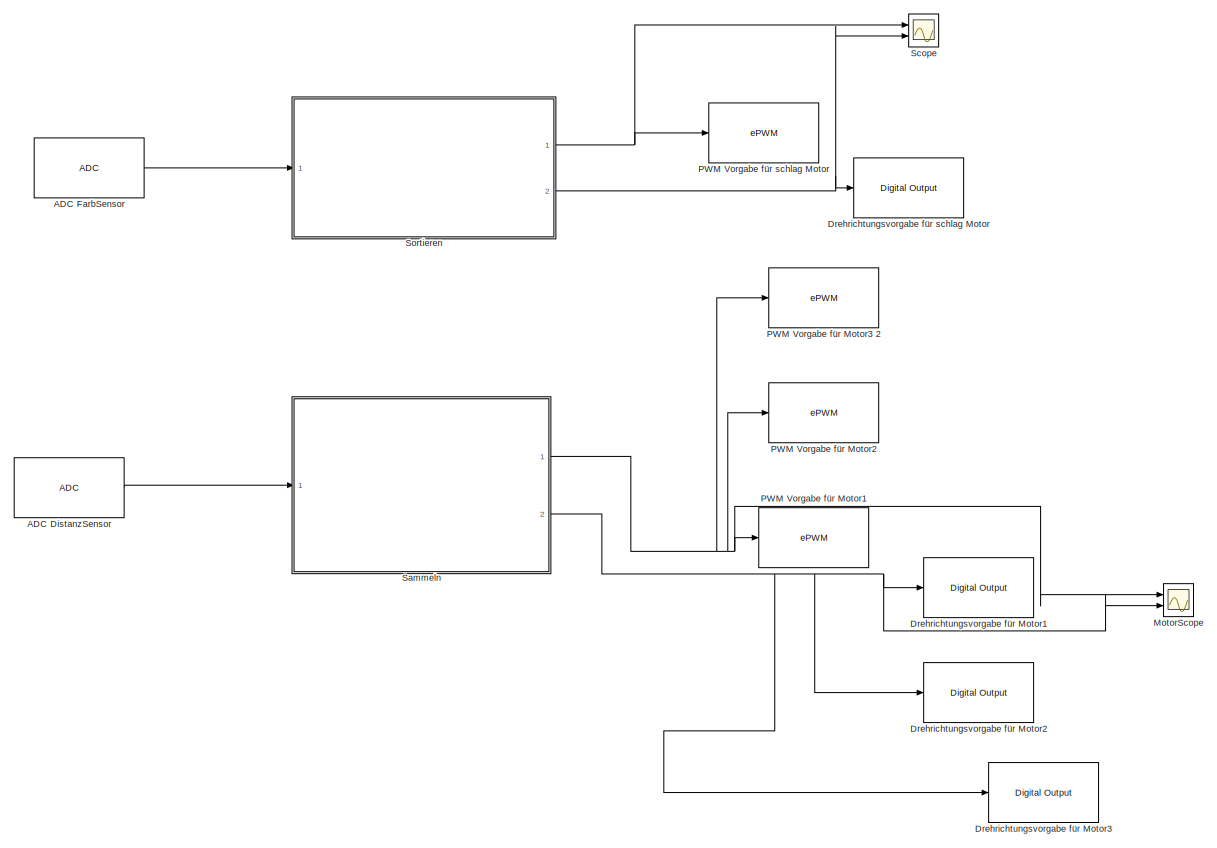
[diagram: root canvas - part 1/4, top right region]
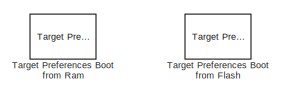
[diagram: root canvas - part 2/4, top left region]
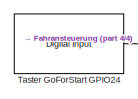
[diagram: root canvas - part 3/4, central region]
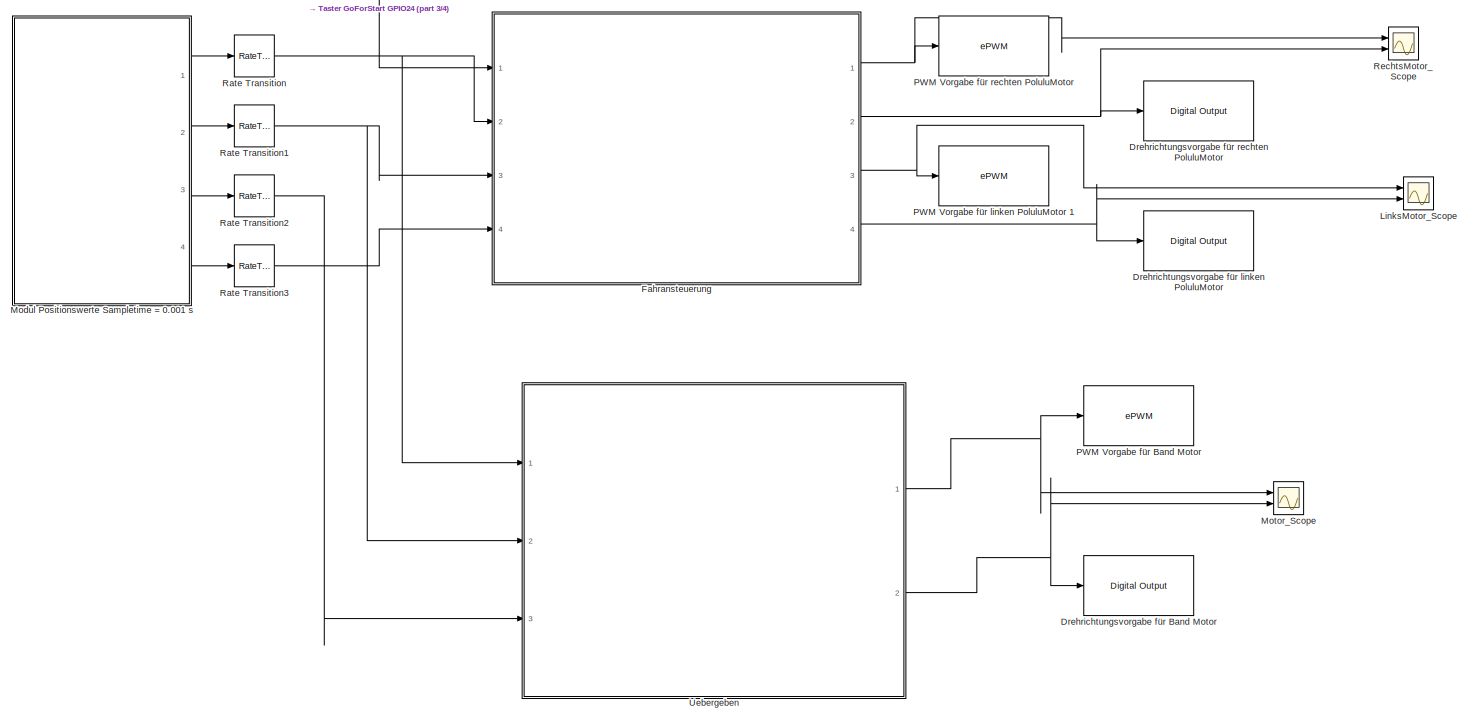
[diagram: root canvas - part 4/4, bottom center region]
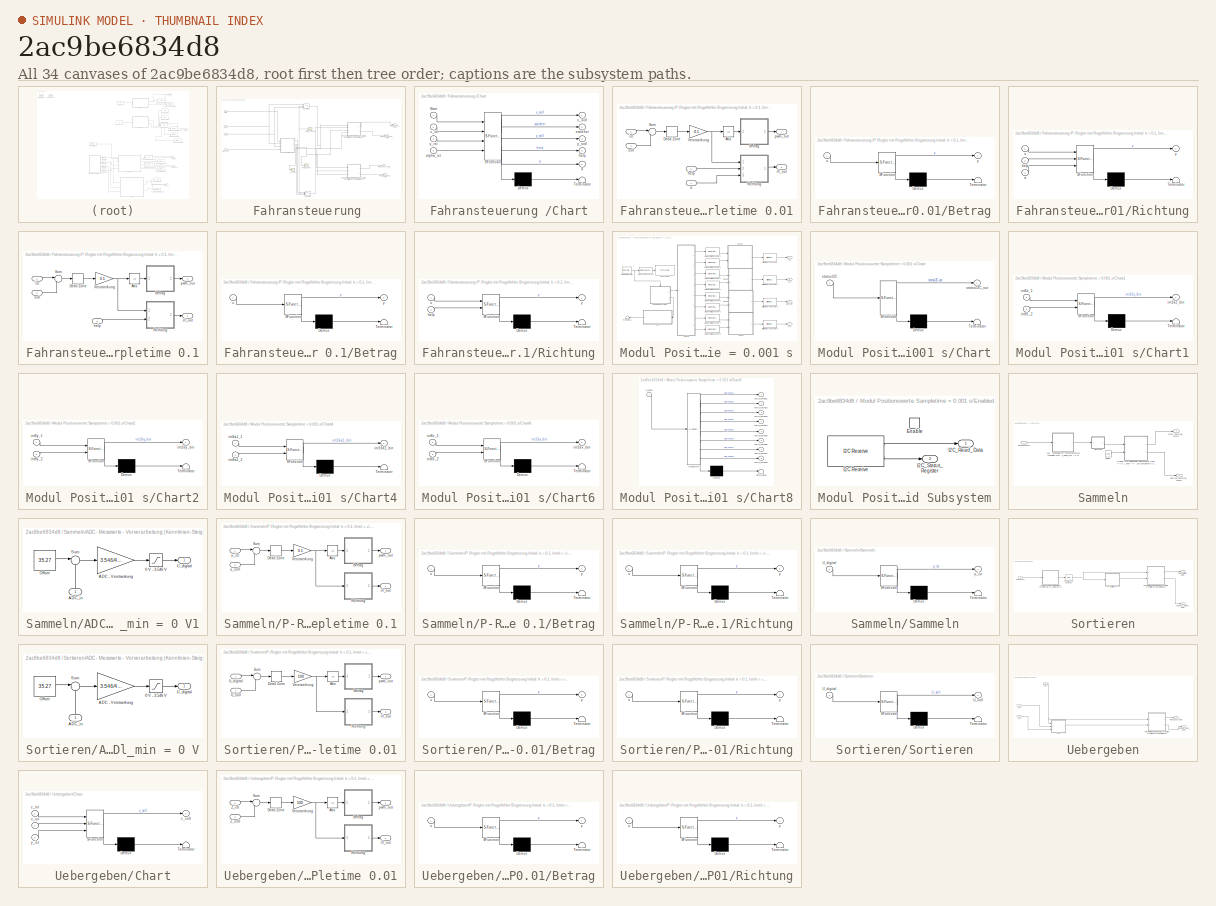
[diagram: thumbnail index - all 34 canvases of the model, root first then tree order]
MODEL slx_2ac9be6834d8
KIND model
BLOCK [Reference] ADC DistanzSensor  REF=c280xlib/ADC
  Ports = [0, 1]
  SourceBlock = c280xlib/ADC
  SourceType = C280x/C2833x ADC
  Ts = 0.001
  UserDataPersistent = on
  c28xmultiPort = off
  chdma = 1
  conv0 = ADCINA0
  conv1 = ADCINA1
  conv10 = ADCINB2
  conv11 = ADCINB3
  conv12 = ADCINB4
  conv13 = ADCINB5
  conv14 = ADCINB6
  conv15 = ADCINB7
  conv2 = ADCINA2
  conv3 = ADCINA3
  conv4 = ADCINA4
  conv5 = ADCINA5
  conv6 = ADCINA6
  conv7 = ADCINA7
  conv8 = ADCINB0
  conv9 = ADCINB1
  convA0 = ADCINA0
  convA1 = ADCINA1
  convA2 = ADCINA2
  convA3 = ADCINA3
  convA4 = ADCINA4
  convA5 = ADCINA5
  convA6 = ADCINA6
  convA7 = ADCINA7
  convAB0 = ADCINA0 and ADCINB0
  convAB1 = ADCINA1 and ADCINB1
  convAB2 = ADCINA2 and ADCINB2
  convAB3 = ADCINA3 and ADCINB3
  convAB4 = ADCINA4 and ADCINB4
  convAB5 = ADCINA5 and ADCINB5
  convAB6 = ADCINA6 and ADCINB6
  convAB7 = ADCINA7 and ADCINB7
  convB0 = ADCINB0
  convB1 = ADCINB1
  convB2 = ADCINB2
  convB3 = ADCINB3
  convB4 = ADCINB4
  convB5 = ADCINB5
  convB6 = ADCINB6
  convB7 = ADCINB7
  dType = uint16
  endma = off
  numConversionsDouble = 1
  numConversionsSingle = 1
  postInterrupt = off
  sourceSOC = Software
  sourceSOC1 = Software
  sourceSOC2 = ePWMxB
  useMode = Sequential
  useModule = A
  xint2_ADCSOC = 31
BLOCK [Reference] ADC FarbSensor  REF=c280xlib/ADC
  Ports = [0, 1]
  SourceBlock = c280xlib/ADC
  SourceType = C280x/C2833x ADC
  Ts = 0.001
  UserDataPersistent = on
  c28xmultiPort = off
  chdma = 1
  conv0 = ADCINA0
  conv1 = ADCINA1
  conv10 = ADCINB2
  conv11 = ADCINB3
  conv12 = ADCINB4
  conv13 = ADCINB5
  conv14 = ADCINB6
  conv15 = ADCINB7
  conv2 = ADCINA2
  conv3 = ADCINA3
  conv4 = ADCINA4
  conv5 = ADCINA5
  conv6 = ADCINA6
  conv7 = ADCINA7
  conv8 = ADCINB0
  conv9 = ADCINB1
  convA0 = ADCINA0
  convA1 = ADCINA1
  convA2 = ADCINA2
  convA3 = ADCINA3
  convA4 = ADCINA4
  convA5 = ADCINA5
  convA6 = ADCINA6
  convA7 = ADCINA7
  convAB0 = ADCINA0 and ADCINB0
  convAB1 = ADCINA1 and ADCINB1
  convAB2 = ADCINA2 and ADCINB2
  convAB3 = ADCINA3 and ADCINB3
  convAB4 = ADCINA4 and ADCINB4
  convAB5 = ADCINA5 and ADCINB5
  convAB6 = ADCINA6 and ADCINB6
  convAB7 = ADCINA7 and ADCINB7
  convB0 = ADCINB0
  convB1 = ADCINB1
  convB2 = ADCINB2
  convB3 = ADCINB3
  convB4 = ADCINB4
  convB5 = ADCINB5
  convB6 = ADCINB6
  convB7 = ADCINB7
  dType = uint16
  endma = off
  numConversionsDouble = 1
  numConversionsSingle = 1
  postInterrupt = off
  sourceSOC = Software
  sourceSOC1 = Software
  sourceSOC2 = ePWMxB
  useMode = Sequential
  useModule = A
  xint2_ADCSOC = 31
BLOCK [Reference] Drehrichtungsvorgabe für Band Motor  REF=c2833xlib/Digital Output
  GPIO_BIT0_Toggle = off
  GPIO_BIT1_Toggle = off
  GPIO_BIT2_Toggle = off
  GPIO_BIT3_Toggle = off
  GPIO_BIT4_Toggle = off
  GPIO_BIT5_Toggle = off
  GPIO_BIT6_Toggle = off
  GPIO_BIT7_Toggle = off
  GPIO_Bit0 = off
  GPIO_Bit1 = off
  GPIO_Bit2 = off
  GPIO_Bit3 = off
  GPIO_Bit4 = off
  GPIO_Bit5 = on
  GPIO_Bit6 = off
  GPIO_Bit7 = off
  GPIO_Number = GPIO16~GPIO23
  Ports = [1]
  SourceBlock = c2833xlib/Digital Output
  SourceType = C2833x GPIO Digital Output
  UserDataPersistent = on
BLOCK [Reference] Drehrichtungsvorgabe für Motor1  REF=c2833xlib/Digital Output
  GPIO_BIT0_Toggle = off
  GPIO_BIT1_Toggle = off
  GPIO_BIT2_Toggle = off
  GPIO_BIT3_Toggle = off
  GPIO_BIT4_Toggle = off
  GPIO_BIT5_Toggle = off
  GPIO_BIT6_Toggle = off
  GPIO_BIT7_Toggle = off
  GPIO_Bit0 = off
  GPIO_Bit1 = off
  GPIO_Bit2 = off
  GPIO_Bit3 = off
  GPIO_Bit4 = off
  GPIO_Bit5 = on
  GPIO_Bit6 = off
  GPIO_Bit7 = off
  GPIO_Number = GPIO16~GPIO23
  Ports = [1]
  SourceBlock = c2833xlib/Digital Output
  SourceType = C2833x GPIO Digital Output
  UserDataPersistent = on
BLOCK [Reference] Drehrichtungsvorgabe für Motor2  REF=c2833xlib/Digital Output
  GPIO_BIT0_Toggle = off
  GPIO_BIT1_Toggle = off
  GPIO_BIT2_Toggle = off
  GPIO_BIT3_Toggle = off
  GPIO_BIT4_Toggle = off
  GPIO_BIT5_Toggle = off
  GPIO_BIT6_Toggle = off
  GPIO_BIT7_Toggle = off
  GPIO_Bit0 = off
  GPIO_Bit1 = off
  GPIO_Bit2 = off
  GPIO_Bit3 = off
  GPIO_Bit4 = off
  GPIO_Bit5 = on
  GPIO_Bit6 = off
  GPIO_Bit7 = off
  GPIO_Number = GPIO16~GPIO23
  Ports = [1]
  SourceBlock = c2833xlib/Digital Output
  SourceType = C2833x GPIO Digital Output
  UserDataPersistent = on
BLOCK [Reference] Drehrichtungsvorgabe für Motor3  REF=c2833xlib/Digital Output
  GPIO_BIT0_Toggle = off
  GPIO_BIT1_Toggle = off
  GPIO_BIT2_Toggle = off
  GPIO_BIT3_Toggle = off
  GPIO_BIT4_Toggle = off
  GPIO_BIT5_Toggle = off
  GPIO_BIT6_Toggle = off
  GPIO_BIT7_Toggle = off
  GPIO_Bit0 = off
  GPIO_Bit1 = off
  GPIO_Bit2 = off
  GPIO_Bit3 = off
  GPIO_Bit4 = off
  GPIO_Bit5 = on
  GPIO_Bit6 = off
  GPIO_Bit7 = off
  GPIO_Number = GPIO16~GPIO23
  Ports = [1]
  SourceBlock = c2833xlib/Digital Output
  SourceType = C2833x GPIO Digital Output
  UserDataPersistent = on
BLOCK [Reference] Drehrichtungsvorgabe für linken PoluluMotor  REF=c2833xlib/Digital Output
  GPIO_BIT0_Toggle = off
  GPIO_BIT1_Toggle = off
  GPIO_BIT2_Toggle = off
  GPIO_BIT3_Toggle = off
  GPIO_BIT4_Toggle = off
  GPIO_BIT5_Toggle = off
  GPIO_BIT6_Toggle = off
  GPIO_BIT7_Toggle = off
  GPIO_Bit0 = off
  GPIO_Bit1 = off
  GPIO_Bit2 = off
  GPIO_Bit3 = off
  GPIO_Bit4 = off
  GPIO_Bit5 = on
  GPIO_Bit6 = off
  GPIO_Bit7 = off
  GPIO_Number = GPIO16~GPIO23
  Ports = [1]
  SourceBlock = c2833xlib/Digital Output
  SourceType = C2833x GPIO Digital Output
  UserDataPersistent = on
BLOCK [Reference] Drehrichtungsvorgabe für rechten PoluluMotor  REF=c2833xlib/Digital Output
  GPIO_BIT0_Toggle = off
  GPIO_BIT1_Toggle = off
  GPIO_BIT2_Toggle = off
  GPIO_BIT3_Toggle = off
  GPIO_BIT4_Toggle = off
  GPIO_BIT5_Toggle = off
  GPIO_BIT6_Toggle = off
  GPIO_BIT7_Toggle = off
  GPIO_Bit0 = off
  GPIO_Bit1 = off
  GPIO_Bit2 = off
  GPIO_Bit3 = off
  GPIO_Bit4 = off
  GPIO_Bit5 = on
  GPIO_Bit6 = off
  GPIO_Bit7 = off
  GPIO_Number = GPIO16~GPIO23
  Ports = [1]
  SourceBlock = c2833xlib/Digital Output
  SourceType = C2833x GPIO Digital Output
  UserDataPersistent = on
BLOCK [Reference] Drehrichtungsvorgabe für schlag Motor  REF=c2833xlib/Digital Output
  GPIO_BIT0_Toggle = off
  GPIO_BIT1_Toggle = off
  GPIO_BIT2_Toggle = off
  GPIO_BIT3_Toggle = off
  GPIO_BIT4_Toggle = off
  GPIO_BIT5_Toggle = off
  GPIO_BIT6_Toggle = off
  GPIO_BIT7_Toggle = off
  GPIO_Bit0 = off
  GPIO_Bit1 = off
  GPIO_Bit2 = off
  GPIO_Bit3 = off
  GPIO_Bit4 = off
  GPIO_Bit5 = on
  GPIO_Bit6 = off
  GPIO_Bit7 = off
  GPIO_Number = GPIO16~GPIO23
  Ports = [1]
  SourceBlock = c2833xlib/Digital Output
  SourceType = C2833x GPIO Digital Output
  UserDataPersistent = on
BLOCK [SubSystem] Fahransteuerung 
  FunctionWithSeparateData = off
  MaskHideContents = off
  MinAlgLoopOccurrences = off
  Opaque = off
  Ports = [4, 4]
  PropExecContextOutsideSubsystem = off
  RTWSystemCode = Auto
  RequestExecContextInheritance = off
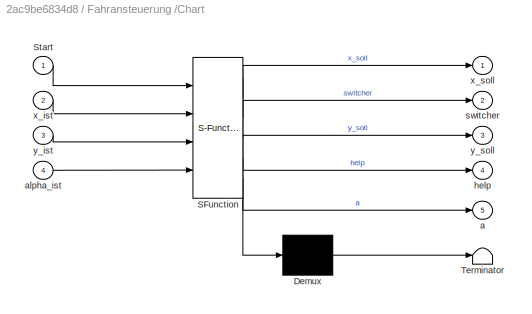
BLOCK [SubSystem] Fahransteuerung /Chart
  ErrorFcn = Stateflow.Translate.translate
  FunctionWithSeparateData = off
  MaskHideContents = off
  MinAlgLoopOccurrences = off
  Opaque = off
  PermitHierarchicalResolution = ExplicitOnly
  Ports = [4, 5]
  PropExecContextOutsideSubsystem = off
  RTWSystemCode = Auto
  RequestExecContextInheritance = off
  SFBlockType = Chart
  TreatAsAtomicUnit = on
BLOCK [Demux] Fahransteuerung /Chart/ Demux 
  Outputs = 1
  Ports = [1, 1]
BLOCK [S-Function] Fahransteuerung /Chart/ SFunction 
  EnableBusSupport = on
  FunctionName = sf_sfun
  PortCounts = [4 6]
  Ports = [4, 6]
  Tag = Stateflow S-Function GesamtAblaufDiagramm_1 11
BLOCK [Terminator] Fahransteuerung /Chart/ Terminator 
BLOCK [Inport] Fahransteuerung /Chart/Start
  IconDisplay = Port number
BLOCK [Outport] Fahransteuerung /Chart/a
  IconDisplay = Port number
  Port = 5
BLOCK [Inport] Fahransteuerung /Chart/alpha_ist
  IconDisplay = Port number
  Port = 4
BLOCK [Outport] Fahransteuerung /Chart/help
  IconDisplay = Port number
  Port = 4
BLOCK [Outport] Fahransteuerung /Chart/switcher
  IconDisplay = Port number
  Port = 2
BLOCK [Inport] Fahransteuerung /Chart/x_ist
  IconDisplay = Port number
  Port = 2
BLOCK [Outport] Fahransteuerung /Chart/x_soll
  IconDisplay = Port number
BLOCK [Inport] Fahransteuerung /Chart/y_ist
  IconDisplay = Port number
  Port = 3
BLOCK [Outport] Fahransteuerung /Chart/y_soll
  IconDisplay = Port number
  Port = 3
BLOCK [Scope] Fahransteuerung /Help_Scope
  DataFormat = StructureWithTime
  Floating = off
  NumInputPorts = 1
  Ports = [1]
  SampleTime = 0
  SaveName = ScopeData5
  ShowLegends = off
BLOCK [Switch] Fahransteuerung /Ist_Switch
  Criteria = u2 > Threshold
  InputSameDT = off
  SaturateOnIntegerOverflow = off
BLOCK [SubSystem] Fahransteuerung /P-Regler mit Regelfehler Begrenzung Initial: k = 0.1, limiit = +//- 100 Sampletime 0.01
  FunctionWithSeparateData = off
  MaskHideContents = off
  MinAlgLoopOccurrences = off
  Opaque = off
  Ports = [4, 2]
  PropExecContextOutsideSubsystem = off
  RTWSystemCode = Auto
  RequestExecContextInheritance = off
BLOCK [Abs] Fahransteuerung /P-Regler mit Regelfehler Begrenzung Initial: k = 0.1, limiit = +//- 100 Sampletime 0.01/Abs
  SampleTime = 0.01
  SaturateOnIntegerOverflow = off
BLOCK [SubSystem] Fahransteuerung /P-Regler mit Regelfehler Begrenzung Initial: k = 0.1, limiit = +//- 100 Sampletime 0.01/Betrag
  ErrorFcn = Stateflow.Translate.translate
  FunctionWithSeparateData = off
  MaskHideContents = off
  MinAlgLoopOccurrences = off
  Opaque = off
  PermitHierarchicalResolution = ExplicitOnly
  Ports = [1, 1]
  PropExecContextOutsideSubsystem = off
  RTWSystemCode = Auto
  RequestExecContextInheritance = off
  SFBlockType = MATLAB Function
  SystemSampleTime = 0.01
  TreatAsAtomicUnit = on
BLOCK [Demux] Fahransteuerung /P-Regler mit Regelfehler Begrenzung Initial: k = 0.1, limiit = +//- 100 Sampletime 0.01/Betrag/ Demux 
  Outputs = 1
  Ports = [1, 1]
BLOCK [S-Function] Fahransteuerung /P-Regler mit Regelfehler Begrenzung Initial: k = 0.1, limiit = +//- 100 Sampletime 0.01/Betrag/ SFunction 
  EnableBusSupport = on
  FunctionName = sf_sfun
  PortCounts = [1 2]
  Ports = [1, 2]
  Tag = Stateflow S-Function GesamtAblaufDiagramm_1 12
BLOCK [Terminator] Fahransteuerung /P-Regler mit Regelfehler Begrenzung Initial: k = 0.1, limiit = +//- 100 Sampletime 0.01/Betrag/ Terminator 
BLOCK [Inport] Fahransteuerung /P-Regler mit Regelfehler Begrenzung Initial: k = 0.1, limiit = +//- 100 Sampletime 0.01/Betrag/u
  IconDisplay = Port number
BLOCK [Outport] Fahransteuerung /P-Regler mit Regelfehler Begrenzung Initial: k = 0.1, limiit = +//- 100 Sampletime 0.01/Betrag/y
  IconDisplay = Port number
BLOCK [DeadZone] Fahransteuerung /P-Regler mit Regelfehler Begrenzung Initial: k = 0.1, limiit = +//- 100 Sampletime 0.01/Dead Zone
  LowerValue = -100
  SampleTime = 0.01
  UpperValue = 100
BLOCK [SubSystem] Fahransteuerung /P-Regler mit Regelfehler Begrenzung Initial: k = 0.1, limiit = +//- 100 Sampletime 0.01/Richtung
  ErrorFcn = Stateflow.Translate.translate
  FunctionWithSeparateData = off
  MaskHideContents = off
  MinAlgLoopOccurrences = off
  Opaque = off
  PermitHierarchicalResolution = ExplicitOnly
  Ports = [3, 1]
  PropExecContextOutsideSubsystem = off
  RTWSystemCode = Auto
  RequestExecContextInheritance = off
  SFBlockType = MATLAB Function
  SystemSampleTime = 0.01
  TreatAsAtomicUnit = on
BLOCK [Demux] Fahransteuerung /P-Regler mit Regelfehler Begrenzung Initial: k = 0.1, limiit = +//- 100 Sampletime 0.01/Richtung/ Demux 
  Outputs = 1
  Ports = [1, 1]
BLOCK [S-Function] Fahransteuerung /P-Regler mit Regelfehler Begrenzung Initial: k = 0.1, limiit = +//- 100 Sampletime 0.01/Richtung/ SFunction 
  EnableBusSupport = on
  FunctionName = sf_sfun
  PortCounts = [3 2]
  Ports = [3, 2]
  Tag = Stateflow S-Function GesamtAblaufDiagramm_1 13
BLOCK [Terminator] Fahransteuerung /P-Regler mit Regelfehler Begrenzung Initial: k = 0.1, limiit = +//- 100 Sampletime 0.01/Richtung/ Terminator 
BLOCK [Inport] Fahransteuerung /P-Regler mit Regelfehler Begrenzung Initial: k = 0.1, limiit = +//- 100 Sampletime 0.01/Richtung/a
  IconDisplay = Port number
  Port = 3
BLOCK [Inport] Fahransteuerung /P-Regler mit Regelfehler Begrenzung Initial: k = 0.1, limiit = +//- 100 Sampletime 0.01/Richtung/help
  IconDisplay = Port number
  Port = 2
BLOCK [Inport] Fahransteuerung /P-Regler mit Regelfehler Begrenzung Initial: k = 0.1, limiit = +//- 100 Sampletime 0.01/Richtung/u
  IconDisplay = Port number
BLOCK [Outport] Fahransteuerung /P-Regler mit Regelfehler Begrenzung Initial: k = 0.1, limiit = +//- 100 Sampletime 0.01/Richtung/y
  IconDisplay = Port number
BLOCK [Sum] Fahransteuerung /P-Regler mit Regelfehler Begrenzung Initial: k = 0.1, limiit = +//- 100 Sampletime 0.01/Sum
  IconShape = round
  InputSameDT = off
  Inputs = |-+
  OutDataTypeStr = Inherit: Inherit via internal rule
  Ports = [2, 1]
  SampleTime = 0.01
  SaturateOnIntegerOverflow = off
BLOCK [Gain] Fahransteuerung /P-Regler mit Regelfehler Begrenzung Initial: k = 0.1, limiit = +//- 100 Sampletime 0.01/Verstaerkung
  Gain = 0.1
  OutDataTypeStr = Inherit: Inherit via internal rule
  ParamDataTypeStr = Inherit: Inherit via internal rule
  SampleTime = 0.01
  SaturateOnIntegerOverflow = off
BLOCK [Inport] Fahransteuerung /P-Regler mit Regelfehler Begrenzung Initial: k = 0.1, limiit = +//- 100 Sampletime 0.01/a
  IconDisplay = Port number
  Port = 4
BLOCK [Inport] Fahransteuerung /P-Regler mit Regelfehler Begrenzung Initial: k = 0.1, limiit = +//- 100 Sampletime 0.01/help
  IconDisplay = Port number
  Port = 3
BLOCK [Inport] Fahransteuerung /P-Regler mit Regelfehler Begrenzung Initial: k = 0.1, limiit = +//- 100 Sampletime 0.01/ist
  IconDisplay = Port number
BLOCK [Outport] Fahransteuerung /P-Regler mit Regelfehler Begrenzung Initial: k = 0.1, limiit = +//- 100 Sampletime 0.01/pwm_out
  IconDisplay = Port number
BLOCK [Outport] Fahransteuerung /P-Regler mit Regelfehler Begrenzung Initial: k = 0.1, limiit = +//- 100 Sampletime 0.01/r//l_out
  IconDisplay = Port number
  Port = 2
BLOCK [Inport] Fahransteuerung /P-Regler mit Regelfehler Begrenzung Initial: k = 0.1, limiit = +//- 100 Sampletime 0.01/soll
  IconDisplay = Port number
  Port = 2
BLOCK [SubSystem] Fahransteuerung /P-Regler mit Regelfehler Begrenzung Initial: k = 0.1, limiit = +//- 100 Sampletime 0.1
  FunctionWithSeparateData = off
  MaskHideContents = off
  MinAlgLoopOccurrences = off
  Opaque = off
  Ports = [3, 2]
  PropExecContextOutsideSubsystem = off
  RTWSystemCode = Auto
  RequestExecContextInheritance = off
BLOCK [Abs] Fahransteuerung /P-Regler mit Regelfehler Begrenzung Initial: k = 0.1, limiit = +//- 100 Sampletime 0.1/Abs
  SampleTime = 0.01
  SaturateOnIntegerOverflow = off
BLOCK [SubSystem] Fahransteuerung /P-Regler mit Regelfehler Begrenzung Initial: k = 0.1, limiit = +//- 100 Sampletime 0.1/Betrag
  ErrorFcn = Stateflow.Translate.translate
  FunctionWithSeparateData = off
  MaskHideContents = off
  MinAlgLoopOccurrences = off
  Opaque = off
  PermitHierarchicalResolution = ExplicitOnly
  Ports = [1, 1]
  PropExecContextOutsideSubsystem = off
  RTWSystemCode = Auto
  RequestExecContextInheritance = off
  SFBlockType = MATLAB Function
  SystemSampleTime = 0.01
  TreatAsAtomicUnit = on
BLOCK [Demux] Fahransteuerung /P-Regler mit Regelfehler Begrenzung Initial: k = 0.1, limiit = +//- 100 Sampletime 0.1/Betrag/ Demux 
  Outputs = 1
  Ports = [1, 1]
BLOCK [S-Function] Fahransteuerung /P-Regler mit Regelfehler Begrenzung Initial: k = 0.1, limiit = +//- 100 Sampletime 0.1/Betrag/ SFunction 
  EnableBusSupport = on
  FunctionName = sf_sfun
  PortCounts = [1 2]
  Ports = [1, 2]
  Tag = Stateflow S-Function GesamtAblaufDiagramm_1 14
BLOCK [Terminator] Fahransteuerung /P-Regler mit Regelfehler Begrenzung Initial: k = 0.1, limiit = +//- 100 Sampletime 0.1/Betrag/ Terminator 
BLOCK [Inport] Fahransteuerung /P-Regler mit Regelfehler Begrenzung Initial: k = 0.1, limiit = +//- 100 Sampletime 0.1/Betrag/u
  IconDisplay = Port number
BLOCK [Outport] Fahransteuerung /P-Regler mit Regelfehler Begrenzung Initial: k = 0.1, limiit = +//- 100 Sampletime 0.1/Betrag/y
  IconDisplay = Port number
BLOCK [DeadZone] Fahransteuerung /P-Regler mit Regelfehler Begrenzung Initial: k = 0.1, limiit = +//- 100 Sampletime 0.1/Dead Zone
  LowerValue = -100
  SampleTime = 0.01
  UpperValue = 100
BLOCK [SubSystem] Fahransteuerung /P-Regler mit Regelfehler Begrenzung Initial: k = 0.1, limiit = +//- 100 Sampletime 0.1/Richtung
  ErrorFcn = Stateflow.Translate.translate
  FunctionWithSeparateData = off
  MaskHideContents = off
  MinAlgLoopOccurrences = off
  Opaque = off
  PermitHierarchicalResolution = ExplicitOnly
  Ports = [2, 1]
  PropExecContextOutsideSubsystem = off
  RTWSystemCode = Auto
  RequestExecContextInheritance = off
  SFBlockType = MATLAB Function
  SystemSampleTime = 0.01
  TreatAsAtomicUnit = on
BLOCK [Demux] Fahransteuerung /P-Regler mit Regelfehler Begrenzung Initial: k = 0.1, limiit = +//- 100 Sampletime 0.1/Richtung/ Demux 
  Outputs = 1
  Ports = [1, 1]
BLOCK [S-Function] Fahransteuerung /P-Regler mit Regelfehler Begrenzung Initial: k = 0.1, limiit = +//- 100 Sampletime 0.1/Richtung/ SFunction 
  EnableBusSupport = on
  FunctionName = sf_sfun
  PortCounts = [2 2]
  Ports = [2, 2]
  Tag = Stateflow S-Function GesamtAblaufDiagramm_1 15
BLOCK [Terminator] Fahransteuerung /P-Regler mit Regelfehler Begrenzung Initial: k = 0.1, limiit = +//- 100 Sampletime 0.1/Richtung/ Terminator 
BLOCK [Inport] Fahransteuerung /P-Regler mit Regelfehler Begrenzung Initial: k = 0.1, limiit = +//- 100 Sampletime 0.1/Richtung/help
  IconDisplay = Port number
  Port = 2
BLOCK [Inport] Fahransteuerung /P-Regler mit Regelfehler Begrenzung Initial: k = 0.1, limiit = +//- 100 Sampletime 0.1/Richtung/u
  IconDisplay = Port number
BLOCK [Outport] Fahransteuerung /P-Regler mit Regelfehler Begrenzung Initial: k = 0.1, limiit = +//- 100 Sampletime 0.1/Richtung/y
  IconDisplay = Port number
BLOCK [Sum] Fahransteuerung /P-Regler mit Regelfehler Begrenzung Initial: k = 0.1, limiit = +//- 100 Sampletime 0.1/Sum
  IconShape = round
  InputSameDT = off
  Inputs = |-+
  OutDataTypeStr = Inherit: Inherit via internal rule
  Ports = [2, 1]
  SampleTime = 0.01
  SaturateOnIntegerOverflow = off
BLOCK [Gain] Fahransteuerung /P-Regler mit Regelfehler Begrenzung Initial: k = 0.1, limiit = +//- 100 Sampletime 0.1/Verstaerkung
  Gain = 0.1
  OutDataTypeStr = Inherit: Inherit via internal rule
  ParamDataTypeStr = Inherit: Inherit via internal rule
  SampleTime = 0.01
  SaturateOnIntegerOverflow = off
BLOCK [Inport] Fahransteuerung /P-Regler mit Regelfehler Begrenzung Initial: k = 0.1, limiit = +//- 100 Sampletime 0.1/help
  IconDisplay = Port number
  Port = 3
BLOCK [Inport] Fahransteuerung /P-Regler mit Regelfehler Begrenzung Initial: k = 0.1, limiit = +//- 100 Sampletime 0.1/ist
  IconDisplay = Port number
BLOCK [Outport] Fahransteuerung /P-Regler mit Regelfehler Begrenzung Initial: k = 0.1, limiit = +//- 100 Sampletime 0.1/pwm_out
  IconDisplay = Port number
BLOCK [Outport] Fahransteuerung /P-Regler mit Regelfehler Begrenzung Initial: k = 0.1, limiit = +//- 100 Sampletime 0.1/r//l_out
  IconDisplay = Port number
  Port = 2
BLOCK [Inport] Fahransteuerung /P-Regler mit Regelfehler Begrenzung Initial: k = 0.1, limiit = +//- 100 Sampletime 0.1/soll
  IconDisplay = Port number
  Port = 2
BLOCK [Outport] Fahransteuerung /PWM_Links_Polulu
  IconDisplay = Port number
  Port = 3
BLOCK [Outport] Fahransteuerung /PWM_Rechts_Polulu
  IconDisplay = Port number
BLOCK [Outport] Fahransteuerung /Richtung_Links_Polulu
  IconDisplay = Port number
  Port = 4
BLOCK [Outport] Fahransteuerung /Richtung_Rechts_Pulolo
  IconDisplay = Port number
  Port = 2
BLOCK [Switch] Fahransteuerung /Soll_Switch
  Criteria = u2 > Threshold
  InputSameDT = off
  SaturateOnIntegerOverflow = off
BLOCK [Inport] Fahransteuerung /Start
  IconDisplay = Port number
BLOCK [Scope] Fahransteuerung /Switch_Scope
  DataFormat = StructureWithTime
  Floating = off
  NumInputPorts = 1
  Ports = [1]
  SampleTime = 0
  SaveName = ScopeData6
  ShowLegends = off
BLOCK [Scope] Fahransteuerung /a_Scope
  DataFormat = StructureWithTime
  Floating = off
  NumInputPorts = 1
  Ports = [1]
  SampleTime = 0
  SaveName = ScopeData7
  ShowLegends = off
BLOCK [Inport] Fahransteuerung /alpha_ist
  IconDisplay = Port number
  Port = 4
BLOCK [Inport] Fahransteuerung /x_ist
  IconDisplay = Port number
  Port = 2
BLOCK [Inport] Fahransteuerung /y_ist
  IconDisplay = Port number
  Port = 3
BLOCK [Scope] LinksMotor_Scope
  DataFormat = StructureWithTime
  Floating = off
  NumInputPorts = 2
  Ports = [2]
  SampleTime = 0
  SaveName = ScopeData3
  ShowLegends = off
  YMax = 5~5
  YMin = -5~-5
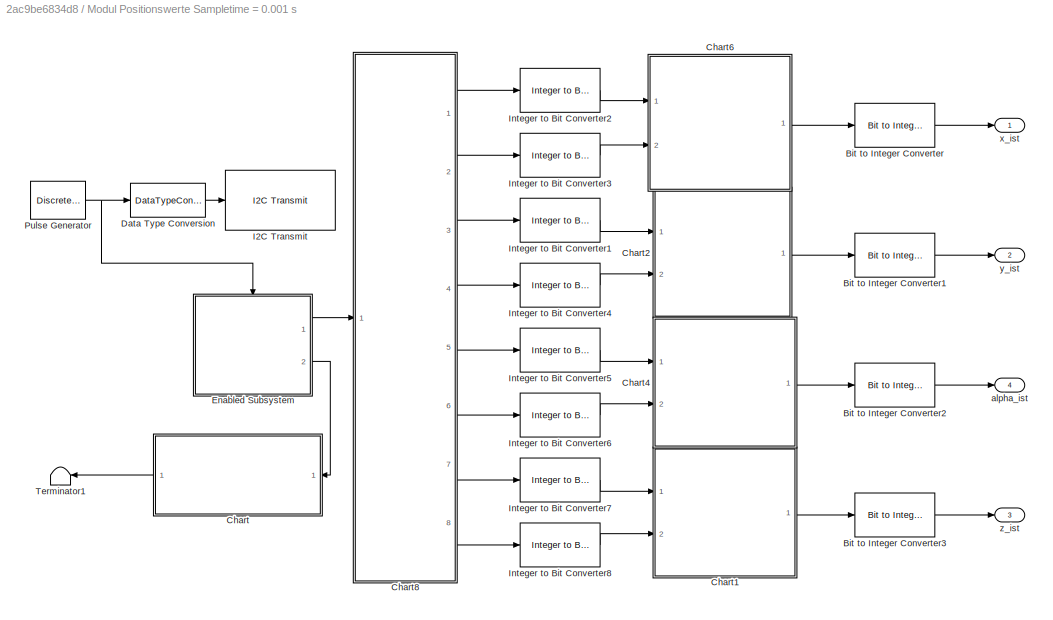
BLOCK [SubSystem] Modul Positionswerte Sampletime = 0.001 s
  FunctionWithSeparateData = off
  MaskHideContents = off
  MinAlgLoopOccurrences = off
  Opaque = off
  Ports = [0, 4]
  PropExecContextOutsideSubsystem = off
  RTWSystemCode = Auto
  RequestExecContextInheritance = off
BLOCK [Reference] Modul Positionswerte Sampletime = 0.001 s/Bit to Integer Converter  REF=commutil2/Bit to Integer
Converter
  Ports = [1, 1]
  SourceBlock = commutil2/Bit to Integer\nConverter
  SourceType = Bit to Integer Converter
  bitOrder = MSB first
  nbits = 16
  outDtype = Inherit via internal rule
  outDtypeSigned = Inherit via internal rule
  signedOutputValues = Signed
BLOCK [Reference] Modul Positionswerte Sampletime = 0.001 s/Bit to Integer Converter1  REF=commutil2/Bit to Integer
Converter
  Ports = [1, 1]
  SourceBlock = commutil2/Bit to Integer\nConverter
  SourceType = Bit to Integer Converter
  bitOrder = MSB first
  nbits = 16
  outDtype = Inherit via internal rule
  outDtypeSigned = Inherit via internal rule
  signedOutputValues = Signed
BLOCK [Reference] Modul Positionswerte Sampletime = 0.001 s/Bit to Integer Converter2  REF=commutil2/Bit to Integer
Converter
  Ports = [1, 1]
  SourceBlock = commutil2/Bit to Integer\nConverter
  SourceType = Bit to Integer Converter
  bitOrder = MSB first
  nbits = 16
  outDtype = Inherit via internal rule
  outDtypeSigned = Inherit via internal rule
  signedOutputValues = Signed
BLOCK [Reference] Modul Positionswerte Sampletime = 0.001 s/Bit to Integer Converter3  REF=commutil2/Bit to Integer
Converter
  Ports = [1, 1]
  SourceBlock = commutil2/Bit to Integer\nConverter
  SourceType = Bit to Integer Converter
  bitOrder = MSB first
  nbits = 16
  outDtype = Inherit via internal rule
  outDtypeSigned = Inherit via internal rule
  signedOutputValues = Signed
BLOCK [SubSystem] Modul Positionswerte Sampletime = 0.001 s/Chart
  ErrorFcn = Stateflow.Translate.translate
  FunctionWithSeparateData = off
  MaskHideContents = off
  MinAlgLoopOccurrences = off
  Opaque = off
  PermitHierarchicalResolution = ExplicitOnly
  Ports = [1, 1]
  PropExecContextOutsideSubsystem = off
  RTWSystemCode = Auto
  RequestExecContextInheritance = off
  SFBlockType = Chart
  TreatAsAtomicUnit = on
BLOCK [Demux] Modul Positionswerte Sampletime = 0.001 s/Chart/ Demux 
  Outputs = 1
  Ports = [1, 1]
BLOCK [S-Function] Modul Positionswerte Sampletime = 0.001 s/Chart/ SFunction 
  EnableBusSupport = on
  FunctionName = sf_sfun
  PortCounts = [1 2]
  Ports = [1, 2]
  Tag = Stateflow S-Function GesamtAblaufDiagramm_1 21
BLOCK [Terminator] Modul Positionswerte Sampletime = 0.001 s/Chart/ Terminator 
BLOCK [Inport] Modul Positionswerte Sampletime = 0.001 s/Chart/statusI2C
  IconDisplay = Port number
BLOCK [Outport] Modul Positionswerte Sampletime = 0.001 s/Chart/statusI2C_out
  IconDisplay = Port number
BLOCK [SubSystem] Modul Positionswerte Sampletime = 0.001 s/Chart1
  ErrorFcn = Stateflow.Translate.translate
  FunctionWithSeparateData = off
  MaskHideContents = off
  MinAlgLoopOccurrences = off
  Opaque = off
  PermitHierarchicalResolution = ExplicitOnly
  Ports = [2, 1]
  PropExecContextOutsideSubsystem = off
  RTWSystemCode = Auto
  RequestExecContextInheritance = off
  SFBlockType = Chart
  TreatAsAtomicUnit = on
BLOCK [Demux] Modul Positionswerte Sampletime = 0.001 s/Chart1/ Demux 
  Outputs = 1
  Ports = [1, 1]
BLOCK [S-Function] Modul Positionswerte Sampletime = 0.001 s/Chart1/ SFunction 
  EnableBusSupport = off
  FunctionName = sf_sfun
  PortCounts = [2 2]
  Ports = [2, 2]
  Tag = Stateflow S-Function GesamtAblaufDiagramm_1 1
BLOCK [Terminator] Modul Positionswerte Sampletime = 0.001 s/Chart1/ Terminator 
BLOCK [Outport] Modul Positionswerte Sampletime = 0.001 s/Chart1/int16z_bin
  IconDisplay = Port number
BLOCK [Inport] Modul Positionswerte Sampletime = 0.001 s/Chart1/int8z_1
  IconDisplay = Port number
BLOCK [Inport] Modul Positionswerte Sampletime = 0.001 s/Chart1/int8z_2
  IconDisplay = Port number
  Port = 2
BLOCK [SubSystem] Modul Positionswerte Sampletime = 0.001 s/Chart2
  ErrorFcn = Stateflow.Translate.translate
  FunctionWithSeparateData = off
  MaskHideContents = off
  MinAlgLoopOccurrences = off
  Opaque = off
  PermitHierarchicalResolution = ExplicitOnly
  Ports = [2, 1]
  PropExecContextOutsideSubsystem = off
  RTWSystemCode = Auto
  RequestExecContextInheritance = off
  SFBlockType = Chart
  TreatAsAtomicUnit = on
BLOCK [Demux] Modul Positionswerte Sampletime = 0.001 s/Chart2/ Demux 
  Outputs = 1
  Ports = [1, 1]
BLOCK [S-Function] Modul Positionswerte Sampletime = 0.001 s/Chart2/ SFunction 
  EnableBusSupport = off
  FunctionName = sf_sfun
  PortCounts = [2 2]
  Ports = [2, 2]
  Tag = Stateflow S-Function GesamtAblaufDiagramm_1 3
BLOCK [Terminator] Modul Positionswerte Sampletime = 0.001 s/Chart2/ Terminator 
BLOCK [Outport] Modul Positionswerte Sampletime = 0.001 s/Chart2/int16y_bin
  IconDisplay = Port number
BLOCK [Inport] Modul Positionswerte Sampletime = 0.001 s/Chart2/int8y_1
  IconDisplay = Port number
BLOCK [Inport] Modul Positionswerte Sampletime = 0.001 s/Chart2/int8y_2
  IconDisplay = Port number
  Port = 2
BLOCK [SubSystem] Modul Positionswerte Sampletime = 0.001 s/Chart4
  ErrorFcn = Stateflow.Translate.translate
  FunctionWithSeparateData = off
  MaskHideContents = off
  MinAlgLoopOccurrences = off
  Opaque = off
  PermitHierarchicalResolution = ExplicitOnly
  Ports = [2, 1]
  PropExecContextOutsideSubsystem = off
  RTWSystemCode = Auto
  RequestExecContextInheritance = off
  SFBlockType = Chart
  TreatAsAtomicUnit = on
BLOCK [Demux] Modul Positionswerte Sampletime = 0.001 s/Chart4/ Demux 
  Outputs = 1
  Ports = [1, 1]
BLOCK [S-Function] Modul Positionswerte Sampletime = 0.001 s/Chart4/ SFunction 
  EnableBusSupport = off
  FunctionName = sf_sfun
  PortCounts = [2 2]
  Ports = [2, 2]
  Tag = Stateflow S-Function GesamtAblaufDiagramm_1 5
BLOCK [Terminator] Modul Positionswerte Sampletime = 0.001 s/Chart4/ Terminator 
BLOCK [Outport] Modul Positionswerte Sampletime = 0.001 s/Chart4/int16a1_bin
  IconDisplay = Port number
BLOCK [Inport] Modul Positionswerte Sampletime = 0.001 s/Chart4/int8a1_1
  IconDisplay = Port number
BLOCK [Inport] Modul Positionswerte Sampletime = 0.001 s/Chart4/int8a1_2
  IconDisplay = Port number
  Port = 2
BLOCK [SubSystem] Modul Positionswerte Sampletime = 0.001 s/Chart6
  ErrorFcn = Stateflow.Translate.translate
  FunctionWithSeparateData = off
  MaskHideContents = off
  MinAlgLoopOccurrences = off
  Opaque = off
  PermitHierarchicalResolution = ExplicitOnly
  Ports = [2, 1]
  PropExecContextOutsideSubsystem = off
  RTWSystemCode = Auto
  RequestExecContextInheritance = off
  SFBlockType = Chart
  TreatAsAtomicUnit = on
BLOCK [Demux] Modul Positionswerte Sampletime = 0.001 s/Chart6/ Demux 
  Outputs = 1
  Ports = [1, 1]
BLOCK [S-Function] Modul Positionswerte Sampletime = 0.001 s/Chart6/ SFunction 
  EnableBusSupport = off
  FunctionName = sf_sfun
  PortCounts = [2 2]
  Ports = [2, 2]
  Tag = Stateflow S-Function GesamtAblaufDiagramm_1 7
BLOCK [Terminator] Modul Positionswerte Sampletime = 0.001 s/Chart6/ Terminator 
BLOCK [Outport] Modul Positionswerte Sampletime = 0.001 s/Chart6/int16x_bin
  IconDisplay = Port number
BLOCK [Inport] Modul Positionswerte Sampletime = 0.001 s/Chart6/int8x_1
  IconDisplay = Port number
BLOCK [Inport] Modul Positionswerte Sampletime = 0.001 s/Chart6/int8x_2
  IconDisplay = Port number
  Port = 2
BLOCK [SubSystem] Modul Positionswerte Sampletime = 0.001 s/Chart8
  ErrorFcn = Stateflow.Translate.translate
  FunctionWithSeparateData = off
  MaskHideContents = off
  MinAlgLoopOccurrences = off
  Opaque = off
  PermitHierarchicalResolution = ExplicitOnly
  Ports = [1, 8]
  PropExecContextOutsideSubsystem = off
  RTWSystemCode = Auto
  RequestExecContextInheritance = off
  SFBlockType = Chart
  TreatAsAtomicUnit = on
BLOCK [Demux] Modul Positionswerte Sampletime = 0.001 s/Chart8/ Demux 
  Outputs = 1
  Ports = [1, 1]
BLOCK [S-Function] Modul Positionswerte Sampletime = 0.001 s/Chart8/ SFunction 
  EnableBusSupport = off
  FunctionName = sf_sfun
  PortCounts = [1 9]
  Ports = [1, 9]
  Tag = Stateflow S-Function GesamtAblaufDiagramm_1 9
BLOCK [Terminator] Modul Positionswerte Sampletime = 0.001 s/Chart8/ Terminator 
BLOCK [Inport] Modul Positionswerte Sampletime = 0.001 s/Chart8/in_data
  IconDisplay = Port number
BLOCK [Outport] Modul Positionswerte Sampletime = 0.001 s/Chart8/valid_values1
  IconDisplay = Port number
BLOCK [Outport] Modul Positionswerte Sampletime = 0.001 s/Chart8/valid_values2
  IconDisplay = Port number
  Port = 2
BLOCK [Outport] Modul Positionswerte Sampletime = 0.001 s/Chart8/valid_values3
  IconDisplay = Port number
  Port = 3
BLOCK [Outport] Modul Positionswerte Sampletime = 0.001 s/Chart8/valid_values4
  IconDisplay = Port number
  Port = 4
BLOCK [Outport] Modul Positionswerte Sampletime = 0.001 s/Chart8/valid_values5
  IconDisplay = Port number
  Port = 5
BLOCK [Outport] Modul Positionswerte Sampletime = 0.001 s/Chart8/valid_values6
  IconDisplay = Port number
  Port = 6
BLOCK [Outport] Modul Positionswerte Sampletime = 0.001 s/Chart8/valid_values7
  IconDisplay = Port number
  Port = 7
BLOCK [Outport] Modul Positionswerte Sampletime = 0.001 s/Chart8/valid_values8
  IconDisplay = Port number
  Port = 8
BLOCK [DataTypeConversion] Modul Positionswerte Sampletime = 0.001 s/Data Type Conversion
  OutDataTypeStr = uint8
  RndMeth = Floor
  SaturateOnIntegerOverflow = off
BLOCK [SubSystem] Modul Positionswerte Sampletime = 0.001 s/Enabled Subsystem
  FunctionWithSeparateData = off
  MaskHideContents = off
  MinAlgLoopOccurrences = off
  Opaque = off
  Ports = [0, 2, 1]
  PropExecContextOutsideSubsystem = off
  RTWSystemCode = Auto
  RequestExecContextInheritance = off
  TreatAsAtomicUnit = on
BLOCK [EnablePort] Modul Positionswerte Sampletime = 0.001 s/Enabled Subsystem/Enable
  Ports = []
  StatesWhenEnabling = reset
BLOCK [Reference] Modul Positionswerte Sampletime = 0.001 s/Enabled Subsystem/I2C Receive  REF=c280xlib/I2C Receive
  NACK = on
  Ports = [0, 2]
  SAR = 80
  STP = off
  STR = on
  SourceBlock = c280xlib/I2C Receive
  SourceType = C28x I2C Receive
  addrFormat = 7-Bit addressing
  bitCount = 8
  dataLength = 10
  dataType = uint8
  initValue = 0
  saSource = Specify via dialog
  sampleTime = 0.001
BLOCK [Outport] Modul Positionswerte Sampletime = 0.001 s/Enabled Subsystem/I2C_Read_Data
  IconDisplay = Port number
BLOCK [Outport] Modul Positionswerte Sampletime = 0.001 s/Enabled Subsystem/I2C_Status_Register
  IconDisplay = Port number
  Port = 2
BLOCK [Reference] Modul Positionswerte Sampletime = 0.001 s/I2C Transmit  REF=c280xlib/I2C Transmit
  Ports = [1]
  RM = off
  SAR = 80
  STP = off
  STR = off
  SourceBlock = c280xlib/I2C Transmit
  SourceType = C28x I2C Transmit
  addrFormat = 7-Bit addressing
  bitCount = 8
  saSource = Specify via dialog
BLOCK [Reference] Modul Positionswerte Sampletime = 0.001 s/Integer to Bit Converter1  REF=commutil2/Integer to Bit
Converter
  Ports = [1, 1]
  SourceBlock = commutil2/Integer to Bit\nConverter
  SourceType = Integer to Bit Converter
  bitOrder = MSB first
  nbits = 8
  outDtype = uint8
  signedInputValues = Unsigned
BLOCK [Reference] Modul Positionswerte Sampletime = 0.001 s/Integer to Bit Converter2  REF=commutil2/Integer to Bit
Converter
  Ports = [1, 1]
  SourceBlock = commutil2/Integer to Bit\nConverter
  SourceType = Integer to Bit Converter
  bitOrder = MSB first
  nbits = 8
  outDtype = uint8
  signedInputValues = Unsigned
BLOCK [Reference] Modul Positionswerte Sampletime = 0.001 s/Integer to Bit Converter3  REF=commutil2/Integer to Bit
Converter
  Ports = [1, 1]
  SourceBlock = commutil2/Integer to Bit\nConverter
  SourceType = Integer to Bit Converter
  bitOrder = MSB first
  nbits = 8
  outDtype = uint8
  signedInputValues = Unsigned
BLOCK [Reference] Modul Positionswerte Sampletime = 0.001 s/Integer to Bit Converter4  REF=commutil2/Integer to Bit
Converter
  Ports = [1, 1]
  SourceBlock = commutil2/Integer to Bit\nConverter
  SourceType = Integer to Bit Converter
  bitOrder = MSB first
  nbits = 8
  outDtype = uint8
  signedInputValues = Unsigned
BLOCK [Reference] Modul Positionswerte Sampletime = 0.001 s/Integer to Bit Converter5  REF=commutil2/Integer to Bit
Converter
  Ports = [1, 1]
  SourceBlock = commutil2/Integer to Bit\nConverter
  SourceType = Integer to Bit Converter
  bitOrder = MSB first
  nbits = 8
  outDtype = uint8
  signedInputValues = Unsigned
BLOCK [Reference] Modul Positionswerte Sampletime = 0.001 s/Integer to Bit Converter6  REF=commutil2/Integer to Bit
Converter
  Ports = [1, 1]
  SourceBlock = commutil2/Integer to Bit\nConverter
  SourceType = Integer to Bit Converter
  bitOrder = MSB first
  nbits = 8
  outDtype = uint8
  signedInputValues = Unsigned
BLOCK [Reference] Modul Positionswerte Sampletime = 0.001 s/Integer to Bit Converter7  REF=commutil2/Integer to Bit
Converter
  Ports = [1, 1]
  SourceBlock = commutil2/Integer to Bit\nConverter
  SourceType = Integer to Bit Converter
  bitOrder = MSB first
  nbits = 8
  outDtype = uint8
  signedInputValues = Unsigned
BLOCK [Reference] Modul Positionswerte Sampletime = 0.001 s/Integer to Bit Converter8  REF=commutil2/Integer to Bit
Converter
  Ports = [1, 1]
  SourceBlock = commutil2/Integer to Bit\nConverter
  SourceType = Integer to Bit Converter
  bitOrder = MSB first
  nbits = 8
  outDtype = uint8
  signedInputValues = Unsigned
BLOCK [DiscretePulseGenerator] Modul Positionswerte Sampletime = 0.001 s/Pulse Generator
  Period = 250
  Ports = [0, 1]
  PulseWidth = 249
  SampleTime = 0.001
BLOCK [Terminator] Modul Positionswerte Sampletime = 0.001 s/Terminator1
BLOCK [Outport] Modul Positionswerte Sampletime = 0.001 s/alpha_ist
  IconDisplay = Port number
  Port = 4
BLOCK [Outport] Modul Positionswerte Sampletime = 0.001 s/x_ist
  IconDisplay = Port number
BLOCK [Outport] Modul Positionswerte Sampletime = 0.001 s/y_ist
  IconDisplay = Port number
  Port = 2
BLOCK [Outport] Modul Positionswerte Sampletime = 0.001 s/z_ist
  IconDisplay = Port number
  Port = 3
BLOCK [Scope] MotorScope
  DataFormat = StructureWithTime
  Floating = off
  NumInputPorts = 2
  Ports = [2]
  SampleTime = 0
  SaveName = ScopeData4
  ShowLegends = off
  YMax = 100~5
  YMin = -5~-5
BLOCK [Scope] Motor_Scope
  DataFormat = StructureWithTime
  Floating = off
  NumInputPorts = 2
  Ports = [2]
  SampleTime = 0
  ShowLegends = off
  YMax = 5~5
  YMin = -5~-5
BLOCK [Reference] PWM Vorgabe für Band Motor   REF=c280xlib/ePWM
  CMPASource = Specify via dialog
  CMPAUnits = Clock cycles
  CMPAValue_clk = 32000
  CMPAValue_per = 50
  CMPBSource = Input port
  CMPBUnits = Percentages
  CMPBValue_clk = 32000
  CMPBValue_per = 0
  DBSource_ePWMxA = ePWMxA
  DBSource_ePWMxB = ePWMxA
  DBedgeDelay = Positive
  DBperiodSource = Specify via dialog
  DBpolarity = AH
  FEDperiod = 0
  HRPWM_CTLMode = Phase control mode
  HRPWM_EDGMode = Both edge
  HRPWM_LoadMode = CTR=ZERO
  HSclockPrescale = 1
  Ports = [1]
  REDperiod = 0
  SourceBlock = c280xlib/ePWM
  SourceType = C280x/C2833x ePWM
  adcrequestEventA = First event
  adcrequestEventB = First event
  adcstartEventA = CTR=Zero
  adcstartEventB = CTR=Zero
  adcstartModuleA = off
  adcstartModuleB = off
  checkMode = off
  chopperDuty = 12.5%
  chopperEnable = off
  chopperFirstwidth = 1
  chopperFrequency = 1
  clockPrescale = 1
  countingMode = Up
  ePWMxACSFenable = off
  ePWMxACSFvalue = Forcing Disable
  ePWMxALoadMode = Load on CTR=Zero
  ePWMxASFreload = Zero
  ePWMxAStatus = off
  ePWMxAValue = 0
  ePWMxAactionLogic1 = Do nothing
  ePWMxAactionLogic2 = Clear
  ePWMxAactionLogic3 = Set
  ePWMxAactionLogic4 = Do nothing
  ePWMxAactionLogic5 = Do nothing
  ePWMxAactionLogic6 = Do nothing
  ePWMxAforced = No action
  ePWMxBCSFenable = off
  ePWMxBCSFvalue = Forcing Disable
  ePWMxBLoadMode = Load on CTR=Zero
  ePWMxBSFreload = Zero
  ePWMxBStatus = on
  ePWMxBValue = 0
  ePWMxBactionLogic1 = Do nothing
  ePWMxBactionLogic2 = Set
  ePWMxBactionLogic3 = Do nothing
  ePWMxBactionLogic4 = Do nothing
  ePWMxBactionLogic5 = Clear
  ePWMxBactionLogic6 = Do nothing
  ePWMxBforced = No action
  enHRPWM = off
  enSFO = on
  enTzCbcIntr = off
  enTzOstIntr = off
  enableDBePWMxA = off
  enableDBePWMxB = off
  intEn = off
  intPrd = First event
  intSel = CTR=Zero
  periodUnits = Clock cycles
  phaseActive = 0
  phaseActiveEnable = Disable
  phaseDirection = Count down after sync
  synchronizationEnable = off
  synchronizationOption = Disable
  timerPeriod = -1
  timerPeriod_clk = 64000
  timerPeriod_sec = 0.0001
  timerSource = Specify via dialog
  tripZoneoption = OSHT
  tripZonesource = Specify via dialog
  tzselCBC1 = off
  tzselCBC2 = off
  tzselCBC3 = off
  tzselCBC4 = off
  tzselCBC5 = off
  tzselCBC6 = off
  tzselOSHT1 = off
  tzselOSHT2 = off
  tzselOSHT3 = off
  tzselOSHT4 = off
  tzselOSHT5 = off
  tzselOSHT6 = off
  useModule = ePWM2
BLOCK [Reference] PWM Vorgabe für Motor1   REF=c280xlib/ePWM
  CMPASource = Specify via dialog
  CMPAUnits = Clock cycles
  CMPAValue_clk = 32000
  CMPAValue_per = 50
  CMPBSource = Input port
  CMPBUnits = Percentages
  CMPBValue_clk = 32000
  CMPBValue_per = 0
  DBSource_ePWMxA = ePWMxA
  DBSource_ePWMxB = ePWMxA
  DBedgeDelay = Positive
  DBperiodSource = Specify via dialog
  DBpolarity = AH
  FEDperiod = 0
  HRPWM_CTLMode = Phase control mode
  HRPWM_EDGMode = Both edge
  HRPWM_LoadMode = CTR=ZERO
  HSclockPrescale = 1
  Ports = [1]
  REDperiod = 0
  SourceBlock = c280xlib/ePWM
  SourceType = C280x/C2833x ePWM
  adcrequestEventA = First event
  adcrequestEventB = First event
  adcstartEventA = CTR=Zero
  adcstartEventB = CTR=Zero
  adcstartModuleA = off
  adcstartModuleB = off
  checkMode = off
  chopperDuty = 12.5%
  chopperEnable = off
  chopperFirstwidth = 1
  chopperFrequency = 1
  clockPrescale = 1
  countingMode = Up
  ePWMxACSFenable = off
  ePWMxACSFvalue = Forcing Disable
  ePWMxALoadMode = Load on CTR=Zero
  ePWMxASFreload = Zero
  ePWMxAStatus = off
  ePWMxAValue = 0
  ePWMxAactionLogic1 = Do nothing
  ePWMxAactionLogic2 = Clear
  ePWMxAactionLogic3 = Set
  ePWMxAactionLogic4 = Do nothing
  ePWMxAactionLogic5 = Do nothing
  ePWMxAactionLogic6 = Do nothing
  ePWMxAforced = No action
  ePWMxBCSFenable = off
  ePWMxBCSFvalue = Forcing Disable
  ePWMxBLoadMode = Load on CTR=Zero
  ePWMxBSFreload = Zero
  ePWMxBStatus = on
  ePWMxBValue = 0
  ePWMxBactionLogic1 = Do nothing
  ePWMxBactionLogic2 = Set
  ePWMxBactionLogic3 = Do nothing
  ePWMxBactionLogic4 = Do nothing
  ePWMxBactionLogic5 = Clear
  ePWMxBactionLogic6 = Do nothing
  ePWMxBforced = No action
  enHRPWM = off
  enSFO = on
  enTzCbcIntr = off
  enTzOstIntr = off
  enableDBePWMxA = off
  enableDBePWMxB = off
  intEn = off
  intPrd = First event
  intSel = CTR=Zero
  periodUnits = Clock cycles
  phaseActive = 0
  phaseActiveEnable = Disable
  phaseDirection = Count down after sync
  synchronizationEnable = off
  synchronizationOption = Disable
  timerPeriod = -1
  timerPeriod_clk = 64000
  timerPeriod_sec = 0.0001
  timerSource = Specify via dialog
  tripZoneoption = OSHT
  tripZonesource = Specify via dialog
  tzselCBC1 = off
  tzselCBC2 = off
  tzselCBC3 = off
  tzselCBC4 = off
  tzselCBC5 = off
  tzselCBC6 = off
  tzselOSHT1 = off
  tzselOSHT2 = off
  tzselOSHT3 = off
  tzselOSHT4 = off
  tzselOSHT5 = off
  tzselOSHT6 = off
  useModule = ePWM2
BLOCK [Reference] PWM Vorgabe für Motor2   REF=c280xlib/ePWM
  CMPASource = Specify via dialog
  CMPAUnits = Clock cycles
  CMPAValue_clk = 32000
  CMPAValue_per = 50
  CMPBSource = Input port
  CMPBUnits = Percentages
  CMPBValue_clk = 32000
  CMPBValue_per = 0
  DBSource_ePWMxA = ePWMxA
  DBSource_ePWMxB = ePWMxA
  DBedgeDelay = Positive
  DBperiodSource = Specify via dialog
  DBpolarity = AH
  FEDperiod = 0
  HRPWM_CTLMode = Phase control mode
  HRPWM_EDGMode = Both edge
  HRPWM_LoadMode = CTR=ZERO
  HSclockPrescale = 1
  Ports = [1]
  REDperiod = 0
  SourceBlock = c280xlib/ePWM
  SourceType = C280x/C2833x ePWM
  adcrequestEventA = First event
  adcrequestEventB = First event
  adcstartEventA = CTR=Zero
  adcstartEventB = CTR=Zero
  adcstartModuleA = off
  adcstartModuleB = off
  checkMode = off
  chopperDuty = 12.5%
  chopperEnable = off
  chopperFirstwidth = 1
  chopperFrequency = 1
  clockPrescale = 1
  countingMode = Up
  ePWMxACSFenable = off
  ePWMxACSFvalue = Forcing Disable
  ePWMxALoadMode = Load on CTR=Zero
  ePWMxASFreload = Zero
  ePWMxAStatus = off
  ePWMxAValue = 0
  ePWMxAactionLogic1 = Do nothing
  ePWMxAactionLogic2 = Clear
  ePWMxAactionLogic3 = Set
  ePWMxAactionLogic4 = Do nothing
  ePWMxAactionLogic5 = Do nothing
  ePWMxAactionLogic6 = Do nothing
  ePWMxAforced = No action
  ePWMxBCSFenable = off
  ePWMxBCSFvalue = Forcing Disable
  ePWMxBLoadMode = Load on CTR=Zero
  ePWMxBSFreload = Zero
  ePWMxBStatus = on
  ePWMxBValue = 0
  ePWMxBactionLogic1 = Do nothing
  ePWMxBactionLogic2 = Set
  ePWMxBactionLogic3 = Do nothing
  ePWMxBactionLogic4 = Do nothing
  ePWMxBactionLogic5 = Clear
  ePWMxBactionLogic6 = Do nothing
  ePWMxBforced = No action
  enHRPWM = off
  enSFO = on
  enTzCbcIntr = off
  enTzOstIntr = off
  enableDBePWMxA = off
  enableDBePWMxB = off
  intEn = off
  intPrd = First event
  intSel = CTR=Zero
  periodUnits = Clock cycles
  phaseActive = 0
  phaseActiveEnable = Disable
  phaseDirection = Count down after sync
  synchronizationEnable = off
  synchronizationOption = Disable
  timerPeriod = -1
  timerPeriod_clk = 64000
  timerPeriod_sec = 0.0001
  timerSource = Specify via dialog
  tripZoneoption = OSHT
  tripZonesource = Specify via dialog
  tzselCBC1 = off
  tzselCBC2 = off
  tzselCBC3 = off
  tzselCBC4 = off
  tzselCBC5 = off
  tzselCBC6 = off
  tzselOSHT1 = off
  tzselOSHT2 = off
  tzselOSHT3 = off
  tzselOSHT4 = off
  tzselOSHT5 = off
  tzselOSHT6 = off
  useModule = ePWM2
BLOCK [Reference] PWM Vorgabe für Motor3 2  REF=c280xlib/ePWM
  CMPASource = Specify via dialog
  CMPAUnits = Clock cycles
  CMPAValue_clk = 32000
  CMPAValue_per = 50
  CMPBSource = Input port
  CMPBUnits = Percentages
  CMPBValue_clk = 32000
  CMPBValue_per = 0
  DBSource_ePWMxA = ePWMxA
  DBSource_ePWMxB = ePWMxA
  DBedgeDelay = Positive
  DBperiodSource = Specify via dialog
  DBpolarity = AH
  FEDperiod = 0
  HRPWM_CTLMode = Phase control mode
  HRPWM_EDGMode = Both edge
  HRPWM_LoadMode = CTR=ZERO
  HSclockPrescale = 1
  Ports = [1]
  REDperiod = 0
  SourceBlock = c280xlib/ePWM
  SourceType = C280x/C2833x ePWM
  adcrequestEventA = First event
  adcrequestEventB = First event
  adcstartEventA = CTR=Zero
  adcstartEventB = CTR=Zero
  adcstartModuleA = off
  adcstartModuleB = off
  checkMode = off
  chopperDuty = 12.5%
  chopperEnable = off
  chopperFirstwidth = 1
  chopperFrequency = 1
  clockPrescale = 1
  countingMode = Up
  ePWMxACSFenable = off
  ePWMxACSFvalue = Forcing Disable
  ePWMxALoadMode = Load on CTR=Zero
  ePWMxASFreload = Zero
  ePWMxAStatus = off
  ePWMxAValue = 0
  ePWMxAactionLogic1 = Do nothing
  ePWMxAactionLogic2 = Clear
  ePWMxAactionLogic3 = Set
  ePWMxAactionLogic4 = Do nothing
  ePWMxAactionLogic5 = Do nothing
  ePWMxAactionLogic6 = Do nothing
  ePWMxAforced = No action
  ePWMxBCSFenable = off
  ePWMxBCSFvalue = Forcing Disable
  ePWMxBLoadMode = Load on CTR=Zero
  ePWMxBSFreload = Zero
  ePWMxBStatus = on
  ePWMxBValue = 0
  ePWMxBactionLogic1 = Do nothing
  ePWMxBactionLogic2 = Set
  ePWMxBactionLogic3 = Do nothing
  ePWMxBactionLogic4 = Do nothing
  ePWMxBactionLogic5 = Clear
  ePWMxBactionLogic6 = Do nothing
  ePWMxBforced = No action
  enHRPWM = off
  enSFO = on
  enTzCbcIntr = off
  enTzOstIntr = off
  enableDBePWMxA = off
  enableDBePWMxB = off
  intEn = off
  intPrd = First event
  intSel = CTR=Zero
  periodUnits = Clock cycles
  phaseActive = 0
  phaseActiveEnable = Disable
  phaseDirection = Count down after sync
  synchronizationEnable = off
  synchronizationOption = Disable
  timerPeriod = -1
  timerPeriod_clk = 64000
  timerPeriod_sec = 0.0001
  timerSource = Specify via dialog
  tripZoneoption = OSHT
  tripZonesource = Specify via dialog
  tzselCBC1 = off
  tzselCBC2 = off
  tzselCBC3 = off
  tzselCBC4 = off
  tzselCBC5 = off
  tzselCBC6 = off
  tzselOSHT1 = off
  tzselOSHT2 = off
  tzselOSHT3 = off
  tzselOSHT4 = off
  tzselOSHT5 = off
  tzselOSHT6 = off
  useModule = ePWM2
BLOCK [Reference] PWM Vorgabe für linken PoluluMotor 1  REF=c280xlib/ePWM
  CMPASource = Specify via dialog
  CMPAUnits = Clock cycles
  CMPAValue_clk = 32000
  CMPAValue_per = 50
  CMPBSource = Input port
  CMPBUnits = Percentages
  CMPBValue_clk = 32000
  CMPBValue_per = 0
  DBSource_ePWMxA = ePWMxA
  DBSource_ePWMxB = ePWMxA
  DBedgeDelay = Positive
  DBperiodSource = Specify via dialog
  DBpolarity = AH
  FEDperiod = 0
  HRPWM_CTLMode = Phase control mode
  HRPWM_EDGMode = Both edge
  HRPWM_LoadMode = CTR=ZERO
  HSclockPrescale = 1
  Ports = [1]
  REDperiod = 0
  SourceBlock = c280xlib/ePWM
  SourceType = C280x/C2833x ePWM
  adcrequestEventA = First event
  adcrequestEventB = First event
  adcstartEventA = CTR=Zero
  adcstartEventB = CTR=Zero
  adcstartModuleA = off
  adcstartModuleB = off
  checkMode = off
  chopperDuty = 12.5%
  chopperEnable = off
  chopperFirstwidth = 1
  chopperFrequency = 1
  clockPrescale = 1
  countingMode = Up
  ePWMxACSFenable = off
  ePWMxACSFvalue = Forcing Disable
  ePWMxALoadMode = Load on CTR=Zero
  ePWMxASFreload = Zero
  ePWMxAStatus = off
  ePWMxAValue = 0
  ePWMxAactionLogic1 = Do nothing
  ePWMxAactionLogic2 = Clear
  ePWMxAactionLogic3 = Set
  ePWMxAactionLogic4 = Do nothing
  ePWMxAactionLogic5 = Do nothing
  ePWMxAactionLogic6 = Do nothing
  ePWMxAforced = No action
  ePWMxBCSFenable = off
  ePWMxBCSFvalue = Forcing Disable
  ePWMxBLoadMode = Load on CTR=Zero
  ePWMxBSFreload = Zero
  ePWMxBStatus = on
  ePWMxBValue = 0
  ePWMxBactionLogic1 = Do nothing
  ePWMxBactionLogic2 = Set
  ePWMxBactionLogic3 = Do nothing
  ePWMxBactionLogic4 = Do nothing
  ePWMxBactionLogic5 = Clear
  ePWMxBactionLogic6 = Do nothing
  ePWMxBforced = No action
  enHRPWM = off
  enSFO = on
  enTzCbcIntr = off
  enTzOstIntr = off
  enableDBePWMxA = off
  enableDBePWMxB = off
  intEn = off
  intPrd = First event
  intSel = CTR=Zero
  periodUnits = Clock cycles
  phaseActive = 0
  phaseActiveEnable = Disable
  phaseDirection = Count down after sync
  synchronizationEnable = off
  synchronizationOption = Disable
  timerPeriod = -1
  timerPeriod_clk = 64000
  timerPeriod_sec = 0.0001
  timerSource = Specify via dialog
  tripZoneoption = OSHT
  tripZonesource = Specify via dialog
  tzselCBC1 = off
  tzselCBC2 = off
  tzselCBC3 = off
  tzselCBC4 = off
  tzselCBC5 = off
  tzselCBC6 = off
  tzselOSHT1 = off
  tzselOSHT2 = off
  tzselOSHT3 = off
  tzselOSHT4 = off
  tzselOSHT5 = off
  tzselOSHT6 = off
  useModule = ePWM2
BLOCK [Reference] PWM Vorgabe für rechten PoluluMotor   REF=c280xlib/ePWM
  CMPASource = Specify via dialog
  CMPAUnits = Clock cycles
  CMPAValue_clk = 32000
  CMPAValue_per = 50
  CMPBSource = Input port
  CMPBUnits = Percentages
  CMPBValue_clk = 32000
  CMPBValue_per = 0
  DBSource_ePWMxA = ePWMxA
  DBSource_ePWMxB = ePWMxA
  DBedgeDelay = Positive
  DBperiodSource = Specify via dialog
  DBpolarity = AH
  FEDperiod = 0
  HRPWM_CTLMode = Phase control mode
  HRPWM_EDGMode = Both edge
  HRPWM_LoadMode = CTR=ZERO
  HSclockPrescale = 1
  Ports = [1]
  REDperiod = 0
  SourceBlock = c280xlib/ePWM
  SourceType = C280x/C2833x ePWM
  adcrequestEventA = First event
  adcrequestEventB = First event
  adcstartEventA = CTR=Zero
  adcstartEventB = CTR=Zero
  adcstartModuleA = off
  adcstartModuleB = off
  checkMode = off
  chopperDuty = 12.5%
  chopperEnable = off
  chopperFirstwidth = 1
  chopperFrequency = 1
  clockPrescale = 1
  countingMode = Up
  ePWMxACSFenable = off
  ePWMxACSFvalue = Forcing Disable
  ePWMxALoadMode = Load on CTR=Zero
  ePWMxASFreload = Zero
  ePWMxAStatus = off
  ePWMxAValue = 0
  ePWMxAactionLogic1 = Do nothing
  ePWMxAactionLogic2 = Clear
  ePWMxAactionLogic3 = Set
  ePWMxAactionLogic4 = Do nothing
  ePWMxAactionLogic5 = Do nothing
  ePWMxAactionLogic6 = Do nothing
  ePWMxAforced = No action
  ePWMxBCSFenable = off
  ePWMxBCSFvalue = Forcing Disable
  ePWMxBLoadMode = Load on CTR=Zero
  ePWMxBSFreload = Zero
  ePWMxBStatus = on
  ePWMxBValue = 0
  ePWMxBactionLogic1 = Do nothing
  ePWMxBactionLogic2 = Set
  ePWMxBactionLogic3 = Do nothing
  ePWMxBactionLogic4 = Do nothing
  ePWMxBactionLogic5 = Clear
  ePWMxBactionLogic6 = Do nothing
  ePWMxBforced = No action
  enHRPWM = off
  enSFO = on
  enTzCbcIntr = off
  enTzOstIntr = off
  enableDBePWMxA = off
  enableDBePWMxB = off
  intEn = off
  intPrd = First event
  intSel = CTR=Zero
  periodUnits = Clock cycles
  phaseActive = 0
  phaseActiveEnable = Disable
  phaseDirection = Count down after sync
  synchronizationEnable = off
  synchronizationOption = Disable
  timerPeriod = -1
  timerPeriod_clk = 64000
  timerPeriod_sec = 0.0001
  timerSource = Specify via dialog
  tripZoneoption = OSHT
  tripZonesource = Specify via dialog
  tzselCBC1 = off
  tzselCBC2 = off
  tzselCBC3 = off
  tzselCBC4 = off
  tzselCBC5 = off
  tzselCBC6 = off
  tzselOSHT1 = off
  tzselOSHT2 = off
  tzselOSHT3 = off
  tzselOSHT4 = off
  tzselOSHT5 = off
  tzselOSHT6 = off
  useModule = ePWM2
BLOCK [Reference] PWM Vorgabe für schlag Motor   REF=c280xlib/ePWM
  CMPASource = Specify via dialog
  CMPAUnits = Clock cycles
  CMPAValue_clk = 32000
  CMPAValue_per = 50
  CMPBSource = Input port
  CMPBUnits = Percentages
  CMPBValue_clk = 32000
  CMPBValue_per = 0
  DBSource_ePWMxA = ePWMxA
  DBSource_ePWMxB = ePWMxA
  DBedgeDelay = Positive
  DBperiodSource = Specify via dialog
  DBpolarity = AH
  FEDperiod = 0
  HRPWM_CTLMode = Phase control mode
  HRPWM_EDGMode = Both edge
  HRPWM_LoadMode = CTR=ZERO
  HSclockPrescale = 1
  Ports = [1]
  REDperiod = 0
  SourceBlock = c280xlib/ePWM
  SourceType = C280x/C2833x ePWM
  adcrequestEventA = First event
  adcrequestEventB = First event
  adcstartEventA = CTR=Zero
  adcstartEventB = CTR=Zero
  adcstartModuleA = off
  adcstartModuleB = off
  checkMode = off
  chopperDuty = 12.5%
  chopperEnable = off
  chopperFirstwidth = 1
  chopperFrequency = 1
  clockPrescale = 1
  countingMode = Up
  ePWMxACSFenable = off
  ePWMxACSFvalue = Forcing Disable
  ePWMxALoadMode = Load on CTR=Zero
  ePWMxASFreload = Zero
  ePWMxAStatus = off
  ePWMxAValue = 0
  ePWMxAactionLogic1 = Do nothing
  ePWMxAactionLogic2 = Clear
  ePWMxAactionLogic3 = Set
  ePWMxAactionLogic4 = Do nothing
  ePWMxAactionLogic5 = Do nothing
  ePWMxAactionLogic6 = Do nothing
  ePWMxAforced = No action
  ePWMxBCSFenable = off
  ePWMxBCSFvalue = Forcing Disable
  ePWMxBLoadMode = Load on CTR=Zero
  ePWMxBSFreload = Zero
  ePWMxBStatus = on
  ePWMxBValue = 0
  ePWMxBactionLogic1 = Do nothing
  ePWMxBactionLogic2 = Set
  ePWMxBactionLogic3 = Do nothing
  ePWMxBactionLogic4 = Do nothing
  ePWMxBactionLogic5 = Clear
  ePWMxBactionLogic6 = Do nothing
  ePWMxBforced = No action
  enHRPWM = off
  enSFO = on
  enTzCbcIntr = off
  enTzOstIntr = off
  enableDBePWMxA = off
  enableDBePWMxB = off
  intEn = off
  intPrd = First event
  intSel = CTR=Zero
  periodUnits = Clock cycles
  phaseActive = 0
  phaseActiveEnable = Disable
  phaseDirection = Count down after sync
  synchronizationEnable = off
  synchronizationOption = Disable
  timerPeriod = -1
  timerPeriod_clk = 64000
  timerPeriod_sec = 0.0001
  timerSource = Specify via dialog
  tripZoneoption = OSHT
  tripZonesource = Specify via dialog
  tzselCBC1 = off
  tzselCBC2 = off
  tzselCBC3 = off
  tzselCBC4 = off
  tzselCBC5 = off
  tzselCBC6 = off
  tzselOSHT1 = off
  tzselOSHT2 = off
  tzselOSHT3 = off
  tzselOSHT4 = off
  tzselOSHT5 = off
  tzselOSHT6 = off
  useModule = ePWM2
BLOCK [RateTransition] Rate Transition
  OutPortSampleTime = 0.01
BLOCK [RateTransition] Rate Transition1
  OutPortSampleTime = 0.01
BLOCK [RateTransition] Rate Transition2
  OutPortSampleTime = 0.01
BLOCK [RateTransition] Rate Transition3
  OutPortSampleTime = 0.01
BLOCK [Scope] RechtsMotor_Scope
  DataFormat = StructureWithTime
  Floating = off
  NumInputPorts = 2
  Ports = [2]
  SampleTime = 0
  SaveName = ScopeData2
  ShowLegends = off
  YMax = 5~5
  YMin = -5~-5
BLOCK [SubSystem] Sammeln
  FunctionWithSeparateData = off
  MaskHideContents = off
  MinAlgLoopOccurrences = off
  Opaque = off
  Ports = [1, 2]
  PropExecContextOutsideSubsystem = off
  RTWSystemCode = Auto
  RequestExecContextInheritance = off
BLOCK [SubSystem] Sammeln/ADC - Messwerte - Vorverarbeitung (Kennlinien-Steigung und Offset-Kompensation) U_digital = (ADC_in - Offset) * 3.546 V // 4096 mit U_digital_max = 3.546 V U_digital_min = 0 V1
  FunctionWithSeparateData = off
  MaskHideContents = off
  MinAlgLoopOccurrences = off
  Opaque = off
  Ports = [1, 1]
  PropExecContextOutsideSubsystem = off
  RTWSystemCode = Auto
  RequestExecContextInheritance = off
BLOCK [Saturate] Sammeln/ADC - Messwerte - Vorverarbeitung (Kennlinien-Steigung und Offset-Kompensation) U_digital = (ADC_in - Offset) * 3.546 V // 4096 mit U_digital_max = 3.546 V U_digital_min = 0 V1/0 V - 3.546 V
  InputPortMap = u0
  LowerLimit = 0
  Ports = [1, 1]
  UpperLimit = 3.546
BLOCK [Gain] Sammeln/ADC - Messwerte - Vorverarbeitung (Kennlinien-Steigung und Offset-Kompensation) U_digital = (ADC_in - Offset) * 3.546 V // 4096 mit U_digital_max = 3.546 V U_digital_min = 0 V1/ADC - Verstaerkung
  Gain = 3.546/4096
  OutDataTypeStr = Inherit: Inherit via internal rule
  ParamDataTypeStr = Inherit: Inherit via internal rule
  SaturateOnIntegerOverflow = off
BLOCK [Inport] Sammeln/ADC - Messwerte - Vorverarbeitung (Kennlinien-Steigung und Offset-Kompensation) U_digital = (ADC_in - Offset) * 3.546 V // 4096 mit U_digital_max = 3.546 V U_digital_min = 0 V1/ADC_in
  IconDisplay = Port number
BLOCK [Constant] Sammeln/ADC - Messwerte - Vorverarbeitung (Kennlinien-Steigung und Offset-Kompensation) U_digital = (ADC_in - Offset) * 3.546 V // 4096 mit U_digital_max = 3.546 V U_digital_min = 0 V1/Offset
  Value = 35.27
BLOCK [Sum] Sammeln/ADC - Messwerte - Vorverarbeitung (Kennlinien-Steigung und Offset-Kompensation) U_digital = (ADC_in - Offset) * 3.546 V // 4096 mit U_digital_max = 3.546 V U_digital_min = 0 V1/Sum
  IconShape = round
  InputSameDT = off
  Inputs = |-+
  OutDataTypeStr = Inherit: Inherit via internal rule
  Ports = [2, 1]
  SaturateOnIntegerOverflow = off
BLOCK [Outport] Sammeln/ADC - Messwerte - Vorverarbeitung (Kennlinien-Steigung und Offset-Kompensation) U_digital = (ADC_in - Offset) * 3.546 V // 4096 mit U_digital_max = 3.546 V U_digital_min = 0 V1/U_digital
  IconDisplay = Port number
BLOCK [Inport] Sammeln/Distanzsensor
  IconDisplay = Port number
BLOCK [SubSystem] Sammeln/P-Regler mit Regelfehler Begrenzung Initial: k = 0.1, limiit = +//- 100 Sampletime 0.1
  FunctionWithSeparateData = off
  MaskHideContents = off
  MinAlgLoopOccurrences = off
  Opaque = off
  Ports = [2, 2]
  PropExecContextOutsideSubsystem = off
  RTWSystemCode = Auto
  RequestExecContextInheritance = off
BLOCK [Abs] Sammeln/P-Regler mit Regelfehler Begrenzung Initial: k = 0.1, limiit = +//- 100 Sampletime 0.1/Abs
  SampleTime = 0.01
  SaturateOnIntegerOverflow = off
BLOCK [SubSystem] Sammeln/P-Regler mit Regelfehler Begrenzung Initial: k = 0.1, limiit = +//- 100 Sampletime 0.1/Betrag
  ErrorFcn = Stateflow.Translate.translate
  FunctionWithSeparateData = off
  MaskHideContents = off
  MinAlgLoopOccurrences = off
  Opaque = off
  PermitHierarchicalResolution = ExplicitOnly
  Ports = [1, 1]
  PropExecContextOutsideSubsystem = off
  RTWSystemCode = Auto
  RequestExecContextInheritance = off
  SFBlockType = MATLAB Function
  SystemSampleTime = 0.01
  TreatAsAtomicUnit = on
BLOCK [Demux] Sammeln/P-Regler mit Regelfehler Begrenzung Initial: k = 0.1, limiit = +//- 100 Sampletime 0.1/Betrag/ Demux 
  Outputs = 1
  Ports = [1, 1]
BLOCK [S-Function] Sammeln/P-Regler mit Regelfehler Begrenzung Initial: k = 0.1, limiit = +//- 100 Sampletime 0.1/Betrag/ SFunction 
  EnableBusSupport = on
  FunctionName = sf_sfun
  PortCounts = [1 2]
  Ports = [1, 2]
  Tag = Stateflow S-Function GesamtAblaufDiagramm_1 18
BLOCK [Terminator] Sammeln/P-Regler mit Regelfehler Begrenzung Initial: k = 0.1, limiit = +//- 100 Sampletime 0.1/Betrag/ Terminator 
BLOCK [Inport] Sammeln/P-Regler mit Regelfehler Begrenzung Initial: k = 0.1, limiit = +//- 100 Sampletime 0.1/Betrag/u
  IconDisplay = Port number
BLOCK [Outport] Sammeln/P-Regler mit Regelfehler Begrenzung Initial: k = 0.1, limiit = +//- 100 Sampletime 0.1/Betrag/y
  IconDisplay = Port number
BLOCK [DeadZone] Sammeln/P-Regler mit Regelfehler Begrenzung Initial: k = 0.1, limiit = +//- 100 Sampletime 0.1/Dead Zone
  LowerValue = -5
  SampleTime = 0.01
  UpperValue = 5
BLOCK [SubSystem] Sammeln/P-Regler mit Regelfehler Begrenzung Initial: k = 0.1, limiit = +//- 100 Sampletime 0.1/Richtung
  ErrorFcn = Stateflow.Translate.translate
  FunctionWithSeparateData = off
  MaskHideContents = off
  MinAlgLoopOccurrences = off
  Opaque = off
  PermitHierarchicalResolution = ExplicitOnly
  Ports = [1, 1]
  PropExecContextOutsideSubsystem = off
  RTWSystemCode = Auto
  RequestExecContextInheritance = off
  SFBlockType = MATLAB Function
  SystemSampleTime = 0.01
  TreatAsAtomicUnit = on
BLOCK [Demux] Sammeln/P-Regler mit Regelfehler Begrenzung Initial: k = 0.1, limiit = +//- 100 Sampletime 0.1/Richtung/ Demux 
  Outputs = 1
  Ports = [1, 1]
BLOCK [S-Function] Sammeln/P-Regler mit Regelfehler Begrenzung Initial: k = 0.1, limiit = +//- 100 Sampletime 0.1/Richtung/ SFunction 
  EnableBusSupport = on
  FunctionName = sf_sfun
  PortCounts = [1 2]
  Ports = [1, 2]
  Tag = Stateflow S-Function GesamtAblaufDiagramm_1 19
BLOCK [Terminator] Sammeln/P-Regler mit Regelfehler Begrenzung Initial: k = 0.1, limiit = +//- 100 Sampletime 0.1/Richtung/ Terminator 
BLOCK [Inport] Sammeln/P-Regler mit Regelfehler Begrenzung Initial: k = 0.1, limiit = +//- 100 Sampletime 0.1/Richtung/u
  IconDisplay = Port number
BLOCK [Outport] Sammeln/P-Regler mit Regelfehler Begrenzung Initial: k = 0.1, limiit = +//- 100 Sampletime 0.1/Richtung/y
  IconDisplay = Port number
BLOCK [Sum] Sammeln/P-Regler mit Regelfehler Begrenzung Initial: k = 0.1, limiit = +//- 100 Sampletime 0.1/Sum
  IconShape = round
  InputSameDT = off
  Inputs = |-+
  OutDataTypeStr = Inherit: Inherit via internal rule
  Ports = [2, 1]
  SampleTime = 0.01
  SaturateOnIntegerOverflow = off
BLOCK [Gain] Sammeln/P-Regler mit Regelfehler Begrenzung Initial: k = 0.1, limiit = +//- 100 Sampletime 0.1/Verstaerkung
  Gain = 0.1
  OutDataTypeStr = Inherit: Inherit via internal rule
  ParamDataTypeStr = Inherit: Inherit via internal rule
  SampleTime = 0.01
  SaturateOnIntegerOverflow = off
BLOCK [Outport] Sammeln/P-Regler mit Regelfehler Begrenzung Initial: k = 0.1, limiit = +//- 100 Sampletime 0.1/pwm_out
  IconDisplay = Port number
BLOCK [Outport] Sammeln/P-Regler mit Regelfehler Begrenzung Initial: k = 0.1, limiit = +//- 100 Sampletime 0.1/r//l_out
  IconDisplay = Port number
  Port = 2
BLOCK [Inport] Sammeln/P-Regler mit Regelfehler Begrenzung Initial: k = 0.1, limiit = +//- 100 Sampletime 0.1/y_ist
  IconDisplay = Port number
BLOCK [Inport] Sammeln/P-Regler mit Regelfehler Begrenzung Initial: k = 0.1, limiit = +//- 100 Sampletime 0.1/y_soll
  IconDisplay = Port number
  Port = 2
BLOCK [Outport] Sammeln/PWM_Sammeln_Motor
  IconDisplay = Port number
BLOCK [Outport] Sammeln/Richtung_Sammeln_Sensor
  IconDisplay = Port number
  Port = 2
BLOCK [SubSystem] Sammeln/Sammeln
  ErrorFcn = Stateflow.Translate.translate
  FunctionWithSeparateData = off
  MaskHideContents = off
  MinAlgLoopOccurrences = off
  Opaque = off
  PermitHierarchicalResolution = ExplicitOnly
  Ports = [1, 1]
  PropExecContextOutsideSubsystem = off
  RTWSystemCode = Auto
  RequestExecContextInheritance = off
  SFBlockType = Chart
  TreatAsAtomicUnit = on
BLOCK [Demux] Sammeln/Sammeln/ Demux 
  Outputs = 1
  Ports = [1, 1]
BLOCK [S-Function] Sammeln/Sammeln/ SFunction 
  EnableBusSupport = off
  FunctionName = sf_sfun
  PortCounts = [1 2]
  Ports = [1, 2]
  Tag = Stateflow S-Function GesamtAblaufDiagramm_1 17
BLOCK [Terminator] Sammeln/Sammeln/ Terminator 
BLOCK [Inport] Sammeln/Sammeln/U_digital
  IconDisplay = Port number
BLOCK [Outport] Sammeln/Sammeln/y_ist
  IconDisplay = Port number
BLOCK [Constant] Sammeln/Sollwert
  Value = 2000
BLOCK [Scope] Scope
  DataFormat = StructureWithTime
  Floating = off
  NumInputPorts = 2
  Ports = [2]
  SampleTime = 0
  SaveName = ScopeData1
  ShowLegends = off
  YMax = 5~5
  YMin = -5~-5
BLOCK [SubSystem] Sortieren
  FunctionWithSeparateData = off
  MaskHideContents = off
  MinAlgLoopOccurrences = off
  Opaque = off
  Ports = [1, 2]
  PropExecContextOutsideSubsystem = off
  RTWSystemCode = Auto
  RequestExecContextInheritance = off
BLOCK [SubSystem] Sortieren/ADC - Messwerte - Vorverarbeitung (Kennlinien-Steigung und Offset-Kompensation) U_digital = (ADC_in - Offset) * 3.546 V // 4096 mit U_digital_max = 3.546 V U_digital_min = 0 V
  FunctionWithSeparateData = off
  MaskHideContents = off
  MinAlgLoopOccurrences = off
  Opaque = off
  Ports = [1, 1]
  PropExecContextOutsideSubsystem = off
  RTWSystemCode = Auto
  RequestExecContextInheritance = off
BLOCK [Saturate] Sortieren/ADC - Messwerte - Vorverarbeitung (Kennlinien-Steigung und Offset-Kompensation) U_digital = (ADC_in - Offset) * 3.546 V // 4096 mit U_digital_max = 3.546 V U_digital_min = 0 V/0 V - 3.546 V
  InputPortMap = u0
  LowerLimit = 0
  Ports = [1, 1]
  UpperLimit = 3.546
BLOCK [Gain] Sortieren/ADC - Messwerte - Vorverarbeitung (Kennlinien-Steigung und Offset-Kompensation) U_digital = (ADC_in - Offset) * 3.546 V // 4096 mit U_digital_max = 3.546 V U_digital_min = 0 V/ADC - Verstaerkung
  Gain = 3.546/4096
  OutDataTypeStr = Inherit: Inherit via internal rule
  ParamDataTypeStr = Inherit: Inherit via internal rule
  SaturateOnIntegerOverflow = off
BLOCK [Inport] Sortieren/ADC - Messwerte - Vorverarbeitung (Kennlinien-Steigung und Offset-Kompensation) U_digital = (ADC_in - Offset) * 3.546 V // 4096 mit U_digital_max = 3.546 V U_digital_min = 0 V/ADC_in
  IconDisplay = Port number
BLOCK [Constant] Sortieren/ADC - Messwerte - Vorverarbeitung (Kennlinien-Steigung und Offset-Kompensation) U_digital = (ADC_in - Offset) * 3.546 V // 4096 mit U_digital_max = 3.546 V U_digital_min = 0 V/Offset
  Value = 35.27
BLOCK [Sum] Sortieren/ADC - Messwerte - Vorverarbeitung (Kennlinien-Steigung und Offset-Kompensation) U_digital = (ADC_in - Offset) * 3.546 V // 4096 mit U_digital_max = 3.546 V U_digital_min = 0 V/Sum
  IconShape = round
  InputSameDT = off
  Inputs = |-+
  OutDataTypeStr = Inherit: Inherit via internal rule
  Ports = [2, 1]
  SaturateOnIntegerOverflow = off
BLOCK [Outport] Sortieren/ADC - Messwerte - Vorverarbeitung (Kennlinien-Steigung und Offset-Kompensation) U_digital = (ADC_in - Offset) * 3.546 V // 4096 mit U_digital_max = 3.546 V U_digital_min = 0 V/U_digital
  IconDisplay = Port number
BLOCK [Inport] Sortieren/Farbsensor
  IconDisplay = Port number
BLOCK [Find] Sortieren/Find Nonzero Elements
  IndexMode = Zero-based
  NumberOfInputDimensions = 3
  Ports = [1, 1]
BLOCK [SubSystem] Sortieren/P-Regler mit Regelfehler Begrenzung Initial: k = 0.1, limiit = +//- 100 Sampletime 0.01
  FunctionWithSeparateData = off
  MaskHideContents = off
  MinAlgLoopOccurrences = off
  Opaque = off
  Ports = [2, 2]
  PropExecContextOutsideSubsystem = off
  RTWSystemCode = Auto
  RequestExecContextInheritance = off
BLOCK [Abs] Sortieren/P-Regler mit Regelfehler Begrenzung Initial: k = 0.1, limiit = +//- 100 Sampletime 0.01/Abs
  SampleTime = 0.01
  SaturateOnIntegerOverflow = off
BLOCK [SubSystem] Sortieren/P-Regler mit Regelfehler Begrenzung Initial: k = 0.1, limiit = +//- 100 Sampletime 0.01/Betrag
  ErrorFcn = Stateflow.Translate.translate
  FunctionWithSeparateData = off
  MaskHideContents = off
  MinAlgLoopOccurrences = off
  Opaque = off
  PermitHierarchicalResolution = ExplicitOnly
  Ports = [1, 1]
  PropExecContextOutsideSubsystem = off
  RTWSystemCode = Auto
  RequestExecContextInheritance = off
  SFBlockType = MATLAB Function
  SystemSampleTime = 0.01
  TreatAsAtomicUnit = on
BLOCK [Demux] Sortieren/P-Regler mit Regelfehler Begrenzung Initial: k = 0.1, limiit = +//- 100 Sampletime 0.01/Betrag/ Demux 
  Outputs = 1
  Ports = [1, 1]
BLOCK [S-Function] Sortieren/P-Regler mit Regelfehler Begrenzung Initial: k = 0.1, limiit = +//- 100 Sampletime 0.01/Betrag/ SFunction 
  EnableBusSupport = on
  FunctionName = sf_sfun
  PortCounts = [1 2]
  Ports = [1, 2]
  Tag = Stateflow S-Function GesamtAblaufDiagramm_1 10
BLOCK [Terminator] Sortieren/P-Regler mit Regelfehler Begrenzung Initial: k = 0.1, limiit = +//- 100 Sampletime 0.01/Betrag/ Terminator 
BLOCK [Inport] Sortieren/P-Regler mit Regelfehler Begrenzung Initial: k = 0.1, limiit = +//- 100 Sampletime 0.01/Betrag/u
  IconDisplay = Port number
BLOCK [Outport] Sortieren/P-Regler mit Regelfehler Begrenzung Initial: k = 0.1, limiit = +//- 100 Sampletime 0.01/Betrag/y
  IconDisplay = Port number
BLOCK [DeadZone] Sortieren/P-Regler mit Regelfehler Begrenzung Initial: k = 0.1, limiit = +//- 100 Sampletime 0.01/Dead Zone
  LowerValue = -5
  SampleTime = 0.01
  UpperValue = 5
BLOCK [SubSystem] Sortieren/P-Regler mit Regelfehler Begrenzung Initial: k = 0.1, limiit = +//- 100 Sampletime 0.01/Richtung
  ErrorFcn = Stateflow.Translate.translate
  FunctionWithSeparateData = off
  MaskHideContents = off
  MinAlgLoopOccurrences = off
  Opaque = off
  PermitHierarchicalResolution = ExplicitOnly
  Ports = [1, 1]
  PropExecContextOutsideSubsystem = off
  RTWSystemCode = Auto
  RequestExecContextInheritance = off
  SFBlockType = MATLAB Function
  SystemSampleTime = 0.01
  TreatAsAtomicUnit = on
BLOCK [Demux] Sortieren/P-Regler mit Regelfehler Begrenzung Initial: k = 0.1, limiit = +//- 100 Sampletime 0.01/Richtung/ Demux 
  Outputs = 1
  Ports = [1, 1]
BLOCK [S-Function] Sortieren/P-Regler mit Regelfehler Begrenzung Initial: k = 0.1, limiit = +//- 100 Sampletime 0.01/Richtung/ SFunction 
  EnableBusSupport = on
  FunctionName = sf_sfun
  PortCounts = [1 2]
  Ports = [1, 2]
  Tag = Stateflow S-Function GesamtAblaufDiagramm_1 16
BLOCK [Terminator] Sortieren/P-Regler mit Regelfehler Begrenzung Initial: k = 0.1, limiit = +//- 100 Sampletime 0.01/Richtung/ Terminator 
BLOCK [Inport] Sortieren/P-Regler mit Regelfehler Begrenzung Initial: k = 0.1, limiit = +//- 100 Sampletime 0.01/Richtung/u
  IconDisplay = Port number
BLOCK [Outport] Sortieren/P-Regler mit Regelfehler Begrenzung Initial: k = 0.1, limiit = +//- 100 Sampletime 0.01/Richtung/y
  IconDisplay = Port number
BLOCK [Sum] Sortieren/P-Regler mit Regelfehler Begrenzung Initial: k = 0.1, limiit = +//- 100 Sampletime 0.01/Sum
  IconShape = round
  InputSameDT = off
  Inputs = |-+
  OutDataTypeStr = Inherit: Inherit via internal rule
  Ports = [2, 1]
  SampleTime = 0.01
  SaturateOnIntegerOverflow = off
BLOCK [Inport] Sortieren/P-Regler mit Regelfehler Begrenzung Initial: k = 0.1, limiit = +//- 100 Sampletime 0.01/U_digital
  IconDisplay = Port number
BLOCK [Inport] Sortieren/P-Regler mit Regelfehler Begrenzung Initial: k = 0.1, limiit = +//- 100 Sampletime 0.01/U_soll
  IconDisplay = Port number
  Port = 2
BLOCK [Gain] Sortieren/P-Regler mit Regelfehler Begrenzung Initial: k = 0.1, limiit = +//- 100 Sampletime 0.01/Verstaerkung
  Gain = 100
  OutDataTypeStr = Inherit: Inherit via internal rule
  ParamDataTypeStr = Inherit: Inherit via internal rule
  SampleTime = 0.01
  SaturateOnIntegerOverflow = off
BLOCK [Outport] Sortieren/P-Regler mit Regelfehler Begrenzung Initial: k = 0.1, limiit = +//- 100 Sampletime 0.01/pwm_out
  IconDisplay = Port number
BLOCK [Outport] Sortieren/P-Regler mit Regelfehler Begrenzung Initial: k = 0.1, limiit = +//- 100 Sampletime 0.01/r//l_out
  IconDisplay = Port number
  Port = 2
BLOCK [Outport] Sortieren/PMW_Sortieren_Motor
  IconDisplay = Port number
BLOCK [Outport] Sortieren/Richtung_Sorieren_Motor
  IconDisplay = Port number
  Port = 2
BLOCK [SubSystem] Sortieren/Sortieren
  ErrorFcn = Stateflow.Translate.translate
  FunctionWithSeparateData = off
  MaskHideContents = off
  MinAlgLoopOccurrences = off
  Opaque = off
  PermitHierarchicalResolution = ExplicitOnly
  Ports = [1, 1]
  PropExecContextOutsideSubsystem = off
  RTWSystemCode = Auto
  RequestExecContextInheritance = off
  SFBlockType = Chart
  TreatAsAtomicUnit = on
BLOCK [Demux] Sortieren/Sortieren/ Demux 
  Outputs = 1
  Ports = [1, 1]
BLOCK [S-Function] Sortieren/Sortieren/ SFunction 
  EnableBusSupport = off
  FunctionName = sf_sfun
  PortCounts = [1 2]
  Ports = [1, 2]
  Tag = Stateflow S-Function GesamtAblaufDiagramm_1 8
BLOCK [Terminator] Sortieren/Sortieren/ Terminator 
BLOCK [Inport] Sortieren/Sortieren/U_digital
  IconDisplay = Port number
BLOCK [Outport] Sortieren/Sortieren/U_soll
  IconDisplay = Port number
BLOCK [Reference] Target Preferences Boot from Flash  REF=idelinklib_tgtpref/Target Preferences
Template
  Ports = []
  SourceBlock = idelinklib_tgtpref/Target Preferences\nTemplate
  SourceType = Target Preferences
  Tag = ccslinktgtpref_ccsv4
  UserDataPersistent = on
  library = off
BLOCK [Reference] Target Preferences Boot from Ram  REF=idelinklib_tgtpref/Target Preferences
Template
  Commented = on
  Ports = []
  SourceBlock = idelinklib_tgtpref/Target Preferences\nTemplate
  SourceType = Target Preferences
  Tag = ccslinktgtpref_ccsv4
  UserDataPersistent = on
  library = off
BLOCK [Reference] Taster GoForStart GPIO24  REF=c2833xlib/Digital Input
  GPIO_Bit0 = on
  GPIO_Bit0_Qualification = Sync to SYSCLKOUT
  GPIO_Bit1 = off
  GPIO_Bit1_Qualification = Sync to SYSCLKOUT
  GPIO_Bit2 = off
  GPIO_Bit2_Qualification = Sync to SYSCLKOUT
  GPIO_Bit3 = off
  GPIO_Bit3_Qualification = Sync to SYSCLKOUT
  GPIO_Bit4 = off
  GPIO_Bit4_Qualification = Sync to SYSCLKOUT
  GPIO_Bit5 = off
  GPIO_Bit5_Qualification = Sync to SYSCLKOUT
  GPIO_Bit6 = off
  GPIO_Bit6_Qualification = Sync to SYSCLKOUT
  GPIO_Bit7 = off
  GPIO_Bit7_Qualification = Sync to SYSCLKOUT
  GPIO_Number = GPIO24~GPIO31
  Ports = [0, 1]
  Qualification_Period = -1
  SourceBlock = c2833xlib/Digital Input
  SourceType = C2833x GPIO Digital Input
  UserDataPersistent = on
  dataType = auto
  sampleTime = 0.001
BLOCK [SubSystem] Uebergeben
  FunctionWithSeparateData = off
  MaskHideContents = off
  MinAlgLoopOccurrences = off
  Opaque = off
  Ports = [3, 2]
  PropExecContextOutsideSubsystem = off
  RTWSystemCode = Auto
  RequestExecContextInheritance = off
BLOCK [SubSystem] Uebergeben/Chart
  ErrorFcn = Stateflow.Translate.translate
  FunctionWithSeparateData = off
  MaskHideContents = off
  MinAlgLoopOccurrences = off
  Opaque = off
  PermitHierarchicalResolution = ExplicitOnly
  Ports = [3, 1]
  PropExecContextOutsideSubsystem = off
  RTWSystemCode = Auto
  RequestExecContextInheritance = off
  SFBlockType = Chart
  TreatAsAtomicUnit = on
BLOCK [Demux] Uebergeben/Chart/ Demux 
  Outputs = 1
  Ports = [1, 1]
BLOCK [S-Function] Uebergeben/Chart/ SFunction 
  EnableBusSupport = off
  FunctionName = sf_sfun
  PortCounts = [3 2]
  Ports = [3, 2]
  Tag = Stateflow S-Function GesamtAblaufDiagramm_1 2
BLOCK [Terminator] Uebergeben/Chart/ Terminator 
BLOCK [Inport] Uebergeben/Chart/x_ist
  IconDisplay = Port number
  Port = 2
BLOCK [Inport] Uebergeben/Chart/y_ist
  IconDisplay = Port number
  Port = 3
BLOCK [Inport] Uebergeben/Chart/z_ist
  IconDisplay = Port number
BLOCK [Outport] Uebergeben/Chart/z_soll
  IconDisplay = Port number
BLOCK [SubSystem] Uebergeben/P-Regler mit Regelfehler Begrenzung Initial: k = 0.1, limiit = +//- 100 Sampletime 0.01
  FunctionWithSeparateData = off
  MaskHideContents = off
  MinAlgLoopOccurrences = off
  Opaque = off
  Ports = [2, 2]
  PropExecContextOutsideSubsystem = off
  RTWSystemCode = Auto
  RequestExecContextInheritance = off
BLOCK [Abs] Uebergeben/P-Regler mit Regelfehler Begrenzung Initial: k = 0.1, limiit = +//- 100 Sampletime 0.01/Abs
  SampleTime = 0.01
  SaturateOnIntegerOverflow = off
BLOCK [SubSystem] Uebergeben/P-Regler mit Regelfehler Begrenzung Initial: k = 0.1, limiit = +//- 100 Sampletime 0.01/Betrag
  ErrorFcn = Stateflow.Translate.translate
  FunctionWithSeparateData = off
  MaskHideContents = off
  MinAlgLoopOccurrences = off
  Opaque = off
  PermitHierarchicalResolution = ExplicitOnly
  Ports = [1, 1]
  PropExecContextOutsideSubsystem = off
  RTWSystemCode = Auto
  RequestExecContextInheritance = off
  SFBlockType = MATLAB Function
  SystemSampleTime = 0.01
  TreatAsAtomicUnit = on
BLOCK [Demux] Uebergeben/P-Regler mit Regelfehler Begrenzung Initial: k = 0.1, limiit = +//- 100 Sampletime 0.01/Betrag/ Demux 
  Outputs = 1
  Ports = [1, 1]
BLOCK [S-Function] Uebergeben/P-Regler mit Regelfehler Begrenzung Initial: k = 0.1, limiit = +//- 100 Sampletime 0.01/Betrag/ SFunction 
  EnableBusSupport = on
  FunctionName = sf_sfun
  PortCounts = [1 2]
  Ports = [1, 2]
  Tag = Stateflow S-Function GesamtAblaufDiagramm_1 4
BLOCK [Terminator] Uebergeben/P-Regler mit Regelfehler Begrenzung Initial: k = 0.1, limiit = +//- 100 Sampletime 0.01/Betrag/ Terminator 
BLOCK [Inport] Uebergeben/P-Regler mit Regelfehler Begrenzung Initial: k = 0.1, limiit = +//- 100 Sampletime 0.01/Betrag/u
  IconDisplay = Port number
BLOCK [Outport] Uebergeben/P-Regler mit Regelfehler Begrenzung Initial: k = 0.1, limiit = +//- 100 Sampletime 0.01/Betrag/y
  IconDisplay = Port number
BLOCK [DeadZone] Uebergeben/P-Regler mit Regelfehler Begrenzung Initial: k = 0.1, limiit = +//- 100 Sampletime 0.01/Dead Zone
  LowerValue = -5
  SampleTime = 0.01
  UpperValue = 5
BLOCK [SubSystem] Uebergeben/P-Regler mit Regelfehler Begrenzung Initial: k = 0.1, limiit = +//- 100 Sampletime 0.01/Richtung
  ErrorFcn = Stateflow.Translate.translate
  FunctionWithSeparateData = off
  MaskHideContents = off
  MinAlgLoopOccurrences = off
  Opaque = off
  PermitHierarchicalResolution = ExplicitOnly
  Ports = [1, 1]
  PropExecContextOutsideSubsystem = off
  RTWSystemCode = Auto
  RequestExecContextInheritance = off
  SFBlockType = MATLAB Function
  SystemSampleTime = 0.01
  TreatAsAtomicUnit = on
BLOCK [Demux] Uebergeben/P-Regler mit Regelfehler Begrenzung Initial: k = 0.1, limiit = +//- 100 Sampletime 0.01/Richtung/ Demux 
  Outputs = 1
  Ports = [1, 1]
BLOCK [S-Function] Uebergeben/P-Regler mit Regelfehler Begrenzung Initial: k = 0.1, limiit = +//- 100 Sampletime 0.01/Richtung/ SFunction 
  EnableBusSupport = on
  FunctionName = sf_sfun
  PortCounts = [1 2]
  Ports = [1, 2]
  Tag = Stateflow S-Function GesamtAblaufDiagramm_1 6
BLOCK [Terminator] Uebergeben/P-Regler mit Regelfehler Begrenzung Initial: k = 0.1, limiit = +//- 100 Sampletime 0.01/Richtung/ Terminator 
BLOCK [Inport] Uebergeben/P-Regler mit Regelfehler Begrenzung Initial: k = 0.1, limiit = +//- 100 Sampletime 0.01/Richtung/u
  IconDisplay = Port number
BLOCK [Outport] Uebergeben/P-Regler mit Regelfehler Begrenzung Initial: k = 0.1, limiit = +//- 100 Sampletime 0.01/Richtung/y
  IconDisplay = Port number
BLOCK [Sum] Uebergeben/P-Regler mit Regelfehler Begrenzung Initial: k = 0.1, limiit = +//- 100 Sampletime 0.01/Sum
  IconShape = round
  InputSameDT = off
  Inputs = |-+
  OutDataTypeStr = Inherit: Inherit via internal rule
  Ports = [2, 1]
  SampleTime = 0.01
  SaturateOnIntegerOverflow = off
BLOCK [Gain] Uebergeben/P-Regler mit Regelfehler Begrenzung Initial: k = 0.1, limiit = +//- 100 Sampletime 0.01/Verstaerkung
  Gain = 100
  OutDataTypeStr = Inherit: Inherit via internal rule
  ParamDataTypeStr = Inherit: Inherit via internal rule
  SampleTime = 0.01
  SaturateOnIntegerOverflow = off
BLOCK [Inport] Uebergeben/P-Regler mit Regelfehler Begrenzung Initial: k = 0.1, limiit = +//- 100 Sampletime 0.01/Z_ist
  IconDisplay = Port number
BLOCK [Inport] Uebergeben/P-Regler mit Regelfehler Begrenzung Initial: k = 0.1, limiit = +//- 100 Sampletime 0.01/Z_soll 
  IconDisplay = Port number
  Port = 2
BLOCK [Outport] Uebergeben/P-Regler mit Regelfehler Begrenzung Initial: k = 0.1, limiit = +//- 100 Sampletime 0.01/pwm_out
  IconDisplay = Port number
BLOCK [Outport] Uebergeben/P-Regler mit Regelfehler Begrenzung Initial: k = 0.1, limiit = +//- 100 Sampletime 0.01/r//l_out
  IconDisplay = Port number
  Port = 2
BLOCK [Outport] Uebergeben/PWM_Band_Motor
  IconDisplay = Port number
BLOCK [Outport] Uebergeben/Richtung_Band_Motor
  IconDisplay = Port number
  Port = 2
BLOCK [Inport] Uebergeben/x_ist
  IconDisplay = Port number
BLOCK [Inport] Uebergeben/y_ist
  IconDisplay = Port number
  Port = 2
BLOCK [Inport] Uebergeben/z_ist
  IconDisplay = Port number
  Port = 3
LINE ADC DistanzSensor:1 -> Sammeln:1
LINE ADC FarbSensor:1 -> Sortieren:1
LINE Fahransteuerung /Chart:1 -> Fahransteuerung /Soll_Switch:1
NET Fahransteuerung /Chart:2 -> Fahransteuerung /Ist_Switch:2, Fahransteuerung /Soll_Switch:2, Fahransteuerung /Switch_Scope:1
LINE Fahransteuerung /Chart:3 -> Fahransteuerung /Soll_Switch:3
NET Fahransteuerung /Chart:4 -> Fahransteuerung /Help_Scope:1, Fahransteuerung /P-Regler mit Regelfehler Begrenzung Initial: k = 0.1, limiit = +//- 100 Sampletime 0.01:3, Fahransteuerung /P-Regler mit Regelfehler Begrenzung Initial: k = 0.1, limiit = +//- 100 Sampletime 0.1:3
NET Fahransteuerung /Chart:5 -> Fahransteuerung /P-Regler mit Regelfehler Begrenzung Initial: k = 0.1, limiit = +//- 100 Sampletime 0.01:4, Fahransteuerung /a_Scope:1
NET Fahransteuerung /Ist_Switch:1 -> Fahransteuerung /P-Regler mit Regelfehler Begrenzung Initial: k = 0.1, limiit = +//- 100 Sampletime 0.01:1, Fahransteuerung /P-Regler mit Regelfehler Begrenzung Initial: k = 0.1, limiit = +//- 100 Sampletime 0.1:1
LINE Fahransteuerung /P-Regler mit Regelfehler Begrenzung Initial: k = 0.1, limiit = +//- 100 Sampletime 0.01/Abs:1 -> Fahransteuerung /P-Regler mit Regelfehler Begrenzung Initial: k = 0.1, limiit = +//- 100 Sampletime 0.01/Betrag:1
LINE Fahransteuerung /P-Regler mit Regelfehler Begrenzung Initial: k = 0.1, limiit = +//- 100 Sampletime 0.01/Betrag:1 -> Fahransteuerung /P-Regler mit Regelfehler Begrenzung Initial: k = 0.1, limiit = +//- 100 Sampletime 0.01/pwm_out:1
LINE Fahransteuerung /P-Regler mit Regelfehler Begrenzung Initial: k = 0.1, limiit = +//- 100 Sampletime 0.01/Dead Zone:1 -> Fahransteuerung /P-Regler mit Regelfehler Begrenzung Initial: k = 0.1, limiit = +//- 100 Sampletime 0.01/Verstaerkung:1
LINE Fahransteuerung /P-Regler mit Regelfehler Begrenzung Initial: k = 0.1, limiit = +//- 100 Sampletime 0.01/Richtung:1 -> Fahransteuerung /P-Regler mit Regelfehler Begrenzung Initial: k = 0.1, limiit = +//- 100 Sampletime 0.01/r//l_out:1
LINE Fahransteuerung /P-Regler mit Regelfehler Begrenzung Initial: k = 0.1, limiit = +//- 100 Sampletime 0.01/Sum:1 -> Fahransteuerung /P-Regler mit Regelfehler Begrenzung Initial: k = 0.1, limiit = +//- 100 Sampletime 0.01/Dead Zone:1
NET Fahransteuerung /P-Regler mit Regelfehler Begrenzung Initial: k = 0.1, limiit = +//- 100 Sampletime 0.01/Verstaerkung:1 -> Fahransteuerung /P-Regler mit Regelfehler Begrenzung Initial: k = 0.1, limiit = +//- 100 Sampletime 0.01/Abs:1, Fahransteuerung /P-Regler mit Regelfehler Begrenzung Initial: k = 0.1, limiit = +//- 100 Sampletime 0.01/Richtung:1
LINE Fahransteuerung /P-Regler mit Regelfehler Begrenzung Initial: k = 0.1, limiit = +//- 100 Sampletime 0.01/a:1 -> Fahransteuerung /P-Regler mit Regelfehler Begrenzung Initial: k = 0.1, limiit = +//- 100 Sampletime 0.01/Richtung:3
LINE Fahransteuerung /P-Regler mit Regelfehler Begrenzung Initial: k = 0.1, limiit = +//- 100 Sampletime 0.01/help:1 -> Fahransteuerung /P-Regler mit Regelfehler Begrenzung Initial: k = 0.1, limiit = +//- 100 Sampletime 0.01/Richtung:2
LINE Fahransteuerung /P-Regler mit Regelfehler Begrenzung Initial: k = 0.1, limiit = +//- 100 Sampletime 0.01/ist:1 -> Fahransteuerung /P-Regler mit Regelfehler Begrenzung Initial: k = 0.1, limiit = +//- 100 Sampletime 0.01/Sum:1
LINE Fahransteuerung /P-Regler mit Regelfehler Begrenzung Initial: k = 0.1, limiit = +//- 100 Sampletime 0.01/soll:1 -> Fahransteuerung /P-Regler mit Regelfehler Begrenzung Initial: k = 0.1, limiit = +//- 100 Sampletime 0.01/Sum:2
LINE Fahransteuerung /P-Regler mit Regelfehler Begrenzung Initial: k = 0.1, limiit = +//- 100 Sampletime 0.01:1 -> Fahransteuerung /PWM_Rechts_Polulu:1
LINE Fahransteuerung /P-Regler mit Regelfehler Begrenzung Initial: k = 0.1, limiit = +//- 100 Sampletime 0.01:2 -> Fahransteuerung /Richtung_Rechts_Pulolo:1
LINE Fahransteuerung /P-Regler mit Regelfehler Begrenzung Initial: k = 0.1, limiit = +//- 100 Sampletime 0.1/Abs:1 -> Fahransteuerung /P-Regler mit Regelfehler Begrenzung Initial: k = 0.1, limiit = +//- 100 Sampletime 0.1/Betrag:1
LINE Fahransteuerung /P-Regler mit Regelfehler Begrenzung Initial: k = 0.1, limiit = +//- 100 Sampletime 0.1/Betrag:1 -> Fahransteuerung /P-Regler mit Regelfehler Begrenzung Initial: k = 0.1, limiit = +//- 100 Sampletime 0.1/pwm_out:1
LINE Fahransteuerung /P-Regler mit Regelfehler Begrenzung Initial: k = 0.1, limiit = +//- 100 Sampletime 0.1/Dead Zone:1 -> Fahransteuerung /P-Regler mit Regelfehler Begrenzung Initial: k = 0.1, limiit = +//- 100 Sampletime 0.1/Verstaerkung:1
LINE Fahransteuerung /P-Regler mit Regelfehler Begrenzung Initial: k = 0.1, limiit = +//- 100 Sampletime 0.1/Richtung:1 -> Fahransteuerung /P-Regler mit Regelfehler Begrenzung Initial: k = 0.1, limiit = +//- 100 Sampletime 0.1/r//l_out:1
LINE Fahransteuerung /P-Regler mit Regelfehler Begrenzung Initial: k = 0.1, limiit = +//- 100 Sampletime 0.1/Sum:1 -> Fahransteuerung /P-Regler mit Regelfehler Begrenzung Initial: k = 0.1, limiit = +//- 100 Sampletime 0.1/Dead Zone:1
NET Fahransteuerung /P-Regler mit Regelfehler Begrenzung Initial: k = 0.1, limiit = +//- 100 Sampletime 0.1/Verstaerkung:1 -> Fahransteuerung /P-Regler mit Regelfehler Begrenzung Initial: k = 0.1, limiit = +//- 100 Sampletime 0.1/Abs:1, Fahransteuerung /P-Regler mit Regelfehler Begrenzung Initial: k = 0.1, limiit = +//- 100 Sampletime 0.1/Richtung:1
LINE Fahransteuerung /P-Regler mit Regelfehler Begrenzung Initial: k = 0.1, limiit = +//- 100 Sampletime 0.1/help:1 -> Fahransteuerung /P-Regler mit Regelfehler Begrenzung Initial: k = 0.1, limiit = +//- 100 Sampletime 0.1/Richtung:2
LINE Fahransteuerung /P-Regler mit Regelfehler Begrenzung Initial: k = 0.1, limiit = +//- 100 Sampletime 0.1/ist:1 -> Fahransteuerung /P-Regler mit Regelfehler Begrenzung Initial: k = 0.1, limiit = +//- 100 Sampletime 0.1/Sum:1
LINE Fahransteuerung /P-Regler mit Regelfehler Begrenzung Initial: k = 0.1, limiit = +//- 100 Sampletime 0.1/soll:1 -> Fahransteuerung /P-Regler mit Regelfehler Begrenzung Initial: k = 0.1, limiit = +//- 100 Sampletime 0.1/Sum:2
LINE Fahransteuerung /P-Regler mit Regelfehler Begrenzung Initial: k = 0.1, limiit = +//- 100 Sampletime 0.1:1 -> Fahransteuerung /PWM_Links_Polulu:1
LINE Fahransteuerung /P-Regler mit Regelfehler Begrenzung Initial: k = 0.1, limiit = +//- 100 Sampletime 0.1:2 -> Fahransteuerung /Richtung_Links_Polulu:1
NET Fahransteuerung /Soll_Switch:1 -> Fahransteuerung /P-Regler mit Regelfehler Begrenzung Initial: k = 0.1, limiit = +//- 100 Sampletime 0.01:2, Fahransteuerung /P-Regler mit Regelfehler Begrenzung Initial: k = 0.1, limiit = +//- 100 Sampletime 0.1:2
LINE Fahransteuerung /Start:1 -> Fahransteuerung /Chart:1
LINE Fahransteuerung /alpha_ist:1 -> Fahransteuerung /Chart:4
NET Fahransteuerung /x_ist:1 -> Fahransteuerung /Chart:2, Fahransteuerung /Ist_Switch:1
NET Fahransteuerung /y_ist:1 -> Fahransteuerung /Chart:3, Fahransteuerung /Ist_Switch:3
NET Fahransteuerung :1 -> PWM Vorgabe für rechten PoluluMotor :1, RechtsMotor_Scope:1
NET Fahransteuerung :2 -> Drehrichtungsvorgabe für rechten PoluluMotor:1, RechtsMotor_Scope:2
NET Fahransteuerung :3 -> LinksMotor_Scope:1, PWM Vorgabe für linken PoluluMotor 1:1
NET Fahransteuerung :4 -> Drehrichtungsvorgabe für linken PoluluMotor:1, LinksMotor_Scope:2
LINE Modul Positionswerte Sampletime = 0.001 s/Bit to Integer Converter1:1 -> Modul Positionswerte Sampletime = 0.001 s/y_ist:1
LINE Modul Positionswerte Sampletime = 0.001 s/Bit to Integer Converter2:1 -> Modul Positionswerte Sampletime = 0.001 s/alpha_ist:1
LINE Modul Positionswerte Sampletime = 0.001 s/Bit to Integer Converter3:1 -> Modul Positionswerte Sampletime = 0.001 s/z_ist:1
LINE Modul Positionswerte Sampletime = 0.001 s/Bit to Integer Converter:1 -> Modul Positionswerte Sampletime = 0.001 s/x_ist:1
LINE Modul Positionswerte Sampletime = 0.001 s/Chart1:1 -> Modul Positionswerte Sampletime = 0.001 s/Bit to Integer Converter3:1
LINE Modul Positionswerte Sampletime = 0.001 s/Chart2:1 -> Modul Positionswerte Sampletime = 0.001 s/Bit to Integer Converter1:1
LINE Modul Positionswerte Sampletime = 0.001 s/Chart4:1 -> Modul Positionswerte Sampletime = 0.001 s/Bit to Integer Converter2:1
LINE Modul Positionswerte Sampletime = 0.001 s/Chart6:1 -> Modul Positionswerte Sampletime = 0.001 s/Bit to Integer Converter:1
LINE Modul Positionswerte Sampletime = 0.001 s/Chart8:1 -> Modul Positionswerte Sampletime = 0.001 s/Integer to Bit Converter2:1
LINE Modul Positionswerte Sampletime = 0.001 s/Chart8:2 -> Modul Positionswerte Sampletime = 0.001 s/Integer to Bit Converter3:1
LINE Modul Positionswerte Sampletime = 0.001 s/Chart8:3 -> Modul Positionswerte Sampletime = 0.001 s/Integer to Bit Converter1:1
LINE Modul Positionswerte Sampletime = 0.001 s/Chart8:4 -> Modul Positionswerte Sampletime = 0.001 s/Integer to Bit Converter4:1
LINE Modul Positionswerte Sampletime = 0.001 s/Chart8:5 -> Modul Positionswerte Sampletime = 0.001 s/Integer to Bit Converter5:1
LINE Modul Positionswerte Sampletime = 0.001 s/Chart8:6 -> Modul Positionswerte Sampletime = 0.001 s/Integer to Bit Converter6:1
LINE Modul Positionswerte Sampletime = 0.001 s/Chart8:7 -> Modul Positionswerte Sampletime = 0.001 s/Integer to Bit Converter7:1
LINE Modul Positionswerte Sampletime = 0.001 s/Chart8:8 -> Modul Positionswerte Sampletime = 0.001 s/Integer to Bit Converter8:1
LINE Modul Positionswerte Sampletime = 0.001 s/Chart:1 -> Modul Positionswerte Sampletime = 0.001 s/Terminator1:1
LINE Modul Positionswerte Sampletime = 0.001 s/Data Type Conversion:1 -> Modul Positionswerte Sampletime = 0.001 s/I2C Transmit:1
LINE Modul Positionswerte Sampletime = 0.001 s/Enabled Subsystem/I2C Receive:1 -> Modul Positionswerte Sampletime = 0.001 s/Enabled Subsystem/I2C_Read_Data:1
LINE Modul Positionswerte Sampletime = 0.001 s/Enabled Subsystem/I2C Receive:2 -> Modul Positionswerte Sampletime = 0.001 s/Enabled Subsystem/I2C_Status_Register:1
LINE Modul Positionswerte Sampletime = 0.001 s/Enabled Subsystem:1 -> Modul Positionswerte Sampletime = 0.001 s/Chart8:1
LINE Modul Positionswerte Sampletime = 0.001 s/Enabled Subsystem:2 -> Modul Positionswerte Sampletime = 0.001 s/Chart:1
LINE Modul Positionswerte Sampletime = 0.001 s/Integer to Bit Converter1:1 -> Modul Positionswerte Sampletime = 0.001 s/Chart2:1
LINE Modul Positionswerte Sampletime = 0.001 s/Integer to Bit Converter2:1 -> Modul Positionswerte Sampletime = 0.001 s/Chart6:1
LINE Modul Positionswerte Sampletime = 0.001 s/Integer to Bit Converter3:1 -> Modul Positionswerte Sampletime = 0.001 s/Chart6:2
LINE Modul Positionswerte Sampletime = 0.001 s/Integer to Bit Converter4:1 -> Modul Positionswerte Sampletime = 0.001 s/Chart2:2
LINE Modul Positionswerte Sampletime = 0.001 s/Integer to Bit Converter5:1 -> Modul Positionswerte Sampletime = 0.001 s/Chart4:1
LINE Modul Positionswerte Sampletime = 0.001 s/Integer to Bit Converter6:1 -> Modul Positionswerte Sampletime = 0.001 s/Chart4:2
LINE Modul Positionswerte Sampletime = 0.001 s/Integer to Bit Converter7:1 -> Modul Positionswerte Sampletime = 0.001 s/Chart1:1
LINE Modul Positionswerte Sampletime = 0.001 s/Integer to Bit Converter8:1 -> Modul Positionswerte Sampletime = 0.001 s/Chart1:2
NET Modul Positionswerte Sampletime = 0.001 s/Pulse Generator:1 -> Modul Positionswerte Sampletime = 0.001 s/Data Type Conversion:1, Modul Positionswerte Sampletime = 0.001 s/Enabled Subsystem:enable
LINE Modul Positionswerte Sampletime = 0.001 s:1 -> Rate Transition:1
LINE Modul Positionswerte Sampletime = 0.001 s:2 -> Rate Transition1:1
LINE Modul Positionswerte Sampletime = 0.001 s:3 -> Rate Transition2:1
LINE Modul Positionswerte Sampletime = 0.001 s:4 -> Rate Transition3:1
NET Rate Transition1:1 -> Fahransteuerung :3, Uebergeben:2
LINE Rate Transition2:1 -> Uebergeben:3
LINE Rate Transition3:1 -> Fahransteuerung :4
NET Rate Transition:1 -> Fahransteuerung :2, Uebergeben:1
LINE Sammeln/ADC - Messwerte - Vorverarbeitung (Kennlinien-Steigung und Offset-Kompensation) U_digital = (ADC_in - Offset) * 3.546 V // 4096 mit U_digital_max = 3.546 V U_digital_min = 0 V1/0 V - 3.546 V:1 -> Sammeln/ADC - Messwerte - Vorverarbeitung (Kennlinien-Steigung und Offset-Kompensation) U_digital = (ADC_in - Offset) * 3.546 V // 4096 mit U_digital_max = 3.546 V U_digital_min = 0 V1/U_digital:1
LINE Sammeln/ADC - Messwerte - Vorverarbeitung (Kennlinien-Steigung und Offset-Kompensation) U_digital = (ADC_in - Offset) * 3.546 V // 4096 mit U_digital_max = 3.546 V U_digital_min = 0 V1/ADC - Verstaerkung:1 -> Sammeln/ADC - Messwerte - Vorverarbeitung (Kennlinien-Steigung und Offset-Kompensation) U_digital = (ADC_in - Offset) * 3.546 V // 4096 mit U_digital_max = 3.546 V U_digital_min = 0 V1/0 V - 3.546 V:1
LINE Sammeln/ADC - Messwerte - Vorverarbeitung (Kennlinien-Steigung und Offset-Kompensation) U_digital = (ADC_in - Offset) * 3.546 V // 4096 mit U_digital_max = 3.546 V U_digital_min = 0 V1/ADC_in:1 -> Sammeln/ADC - Messwerte - Vorverarbeitung (Kennlinien-Steigung und Offset-Kompensation) U_digital = (ADC_in - Offset) * 3.546 V // 4096 mit U_digital_max = 3.546 V U_digital_min = 0 V1/Sum:2
LINE Sammeln/ADC - Messwerte - Vorverarbeitung (Kennlinien-Steigung und Offset-Kompensation) U_digital = (ADC_in - Offset) * 3.546 V // 4096 mit U_digital_max = 3.546 V U_digital_min = 0 V1/Offset:1 -> Sammeln/ADC - Messwerte - Vorverarbeitung (Kennlinien-Steigung und Offset-Kompensation) U_digital = (ADC_in - Offset) * 3.546 V // 4096 mit U_digital_max = 3.546 V U_digital_min = 0 V1/Sum:1
LINE Sammeln/ADC - Messwerte - Vorverarbeitung (Kennlinien-Steigung und Offset-Kompensation) U_digital = (ADC_in - Offset) * 3.546 V // 4096 mit U_digital_max = 3.546 V U_digital_min = 0 V1/Sum:1 -> Sammeln/ADC - Messwerte - Vorverarbeitung (Kennlinien-Steigung und Offset-Kompensation) U_digital = (ADC_in - Offset) * 3.546 V // 4096 mit U_digital_max = 3.546 V U_digital_min = 0 V1/ADC - Verstaerkung:1
LINE Sammeln/ADC - Messwerte - Vorverarbeitung (Kennlinien-Steigung und Offset-Kompensation) U_digital = (ADC_in - Offset) * 3.546 V // 4096 mit U_digital_max = 3.546 V U_digital_min = 0 V1:1 -> Sammeln/Sammeln:1
LINE Sammeln/Distanzsensor:1 -> Sammeln/ADC - Messwerte - Vorverarbeitung (Kennlinien-Steigung und Offset-Kompensation) U_digital = (ADC_in - Offset) * 3.546 V // 4096 mit U_digital_max = 3.546 V U_digital_min = 0 V1:1
LINE Sammeln/P-Regler mit Regelfehler Begrenzung Initial: k = 0.1, limiit = +//- 100 Sampletime 0.1/Abs:1 -> Sammeln/P-Regler mit Regelfehler Begrenzung Initial: k = 0.1, limiit = +//- 100 Sampletime 0.1/Betrag:1
LINE Sammeln/P-Regler mit Regelfehler Begrenzung Initial: k = 0.1, limiit = +//- 100 Sampletime 0.1/Betrag:1 -> Sammeln/P-Regler mit Regelfehler Begrenzung Initial: k = 0.1, limiit = +//- 100 Sampletime 0.1/pwm_out:1
LINE Sammeln/P-Regler mit Regelfehler Begrenzung Initial: k = 0.1, limiit = +//- 100 Sampletime 0.1/Dead Zone:1 -> Sammeln/P-Regler mit Regelfehler Begrenzung Initial: k = 0.1, limiit = +//- 100 Sampletime 0.1/Verstaerkung:1
LINE Sammeln/P-Regler mit Regelfehler Begrenzung Initial: k = 0.1, limiit = +//- 100 Sampletime 0.1/Richtung:1 -> Sammeln/P-Regler mit Regelfehler Begrenzung Initial: k = 0.1, limiit = +//- 100 Sampletime 0.1/r//l_out:1
LINE Sammeln/P-Regler mit Regelfehler Begrenzung Initial: k = 0.1, limiit = +//- 100 Sampletime 0.1/Sum:1 -> Sammeln/P-Regler mit Regelfehler Begrenzung Initial: k = 0.1, limiit = +//- 100 Sampletime 0.1/Dead Zone:1
NET Sammeln/P-Regler mit Regelfehler Begrenzung Initial: k = 0.1, limiit = +//- 100 Sampletime 0.1/Verstaerkung:1 -> Sammeln/P-Regler mit Regelfehler Begrenzung Initial: k = 0.1, limiit = +//- 100 Sampletime 0.1/Abs:1, Sammeln/P-Regler mit Regelfehler Begrenzung Initial: k = 0.1, limiit = +//- 100 Sampletime 0.1/Richtung:1
LINE Sammeln/P-Regler mit Regelfehler Begrenzung Initial: k = 0.1, limiit = +//- 100 Sampletime 0.1/y_ist:1 -> Sammeln/P-Regler mit Regelfehler Begrenzung Initial: k = 0.1, limiit = +//- 100 Sampletime 0.1/Sum:1
LINE Sammeln/P-Regler mit Regelfehler Begrenzung Initial: k = 0.1, limiit = +//- 100 Sampletime 0.1/y_soll:1 -> Sammeln/P-Regler mit Regelfehler Begrenzung Initial: k = 0.1, limiit = +//- 100 Sampletime 0.1/Sum:2
LINE Sammeln/P-Regler mit Regelfehler Begrenzung Initial: k = 0.1, limiit = +//- 100 Sampletime 0.1:1 -> Sammeln/PWM_Sammeln_Motor:1
LINE Sammeln/P-Regler mit Regelfehler Begrenzung Initial: k = 0.1, limiit = +//- 100 Sampletime 0.1:2 -> Sammeln/Richtung_Sammeln_Sensor:1
LINE Sammeln/Sammeln:1 -> Sammeln/P-Regler mit Regelfehler Begrenzung Initial: k = 0.1, limiit = +//- 100 Sampletime 0.1:1
LINE Sammeln/Sollwert:1 -> Sammeln/P-Regler mit Regelfehler Begrenzung Initial: k = 0.1, limiit = +//- 100 Sampletime 0.1:2
NET Sammeln:1 -> MotorScope:1, PWM Vorgabe für Motor1 :1, PWM Vorgabe für Motor2 :1, PWM Vorgabe für Motor3 2:1
NET Sammeln:2 -> Drehrichtungsvorgabe für Motor1:1, Drehrichtungsvorgabe für Motor2:1, Drehrichtungsvorgabe für Motor3:1, MotorScope:2
LINE Sortieren/ADC - Messwerte - Vorverarbeitung (Kennlinien-Steigung und Offset-Kompensation) U_digital = (ADC_in - Offset) * 3.546 V // 4096 mit U_digital_max = 3.546 V U_digital_min = 0 V/0 V - 3.546 V:1 -> Sortieren/ADC - Messwerte - Vorverarbeitung (Kennlinien-Steigung und Offset-Kompensation) U_digital = (ADC_in - Offset) * 3.546 V // 4096 mit U_digital_max = 3.546 V U_digital_min = 0 V/U_digital:1
LINE Sortieren/ADC - Messwerte - Vorverarbeitung (Kennlinien-Steigung und Offset-Kompensation) U_digital = (ADC_in - Offset) * 3.546 V // 4096 mit U_digital_max = 3.546 V U_digital_min = 0 V/ADC - Verstaerkung:1 -> Sortieren/ADC - Messwerte - Vorverarbeitung (Kennlinien-Steigung und Offset-Kompensation) U_digital = (ADC_in - Offset) * 3.546 V // 4096 mit U_digital_max = 3.546 V U_digital_min = 0 V/0 V - 3.546 V:1
LINE Sortieren/ADC - Messwerte - Vorverarbeitung (Kennlinien-Steigung und Offset-Kompensation) U_digital = (ADC_in - Offset) * 3.546 V // 4096 mit U_digital_max = 3.546 V U_digital_min = 0 V/ADC_in:1 -> Sortieren/ADC - Messwerte - Vorverarbeitung (Kennlinien-Steigung und Offset-Kompensation) U_digital = (ADC_in - Offset) * 3.546 V // 4096 mit U_digital_max = 3.546 V U_digital_min = 0 V/Sum:2
LINE Sortieren/ADC - Messwerte - Vorverarbeitung (Kennlinien-Steigung und Offset-Kompensation) U_digital = (ADC_in - Offset) * 3.546 V // 4096 mit U_digital_max = 3.546 V U_digital_min = 0 V/Offset:1 -> Sortieren/ADC - Messwerte - Vorverarbeitung (Kennlinien-Steigung und Offset-Kompensation) U_digital = (ADC_in - Offset) * 3.546 V // 4096 mit U_digital_max = 3.546 V U_digital_min = 0 V/Sum:1
LINE Sortieren/ADC - Messwerte - Vorverarbeitung (Kennlinien-Steigung und Offset-Kompensation) U_digital = (ADC_in - Offset) * 3.546 V // 4096 mit U_digital_max = 3.546 V U_digital_min = 0 V/Sum:1 -> Sortieren/ADC - Messwerte - Vorverarbeitung (Kennlinien-Steigung und Offset-Kompensation) U_digital = (ADC_in - Offset) * 3.546 V // 4096 mit U_digital_max = 3.546 V U_digital_min = 0 V/ADC - Verstaerkung:1
LINE Sortieren/ADC - Messwerte - Vorverarbeitung (Kennlinien-Steigung und Offset-Kompensation) U_digital = (ADC_in - Offset) * 3.546 V // 4096 mit U_digital_max = 3.546 V U_digital_min = 0 V:1 -> Sortieren/Find Nonzero Elements:1
LINE Sortieren/Farbsensor:1 -> Sortieren/ADC - Messwerte - Vorverarbeitung (Kennlinien-Steigung und Offset-Kompensation) U_digital = (ADC_in - Offset) * 3.546 V // 4096 mit U_digital_max = 3.546 V U_digital_min = 0 V:1
NET Sortieren/Find Nonzero Elements:1 -> Sortieren/P-Regler mit Regelfehler Begrenzung Initial: k = 0.1, limiit = +//- 100 Sampletime 0.01:1, Sortieren/Sortieren:1
LINE Sortieren/P-Regler mit Regelfehler Begrenzung Initial: k = 0.1, limiit = +//- 100 Sampletime 0.01/Abs:1 -> Sortieren/P-Regler mit Regelfehler Begrenzung Initial: k = 0.1, limiit = +//- 100 Sampletime 0.01/Betrag:1
LINE Sortieren/P-Regler mit Regelfehler Begrenzung Initial: k = 0.1, limiit = +//- 100 Sampletime 0.01/Betrag:1 -> Sortieren/P-Regler mit Regelfehler Begrenzung Initial: k = 0.1, limiit = +//- 100 Sampletime 0.01/pwm_out:1
LINE Sortieren/P-Regler mit Regelfehler Begrenzung Initial: k = 0.1, limiit = +//- 100 Sampletime 0.01/Dead Zone:1 -> Sortieren/P-Regler mit Regelfehler Begrenzung Initial: k = 0.1, limiit = +//- 100 Sampletime 0.01/Verstaerkung:1
LINE Sortieren/P-Regler mit Regelfehler Begrenzung Initial: k = 0.1, limiit = +//- 100 Sampletime 0.01/Richtung:1 -> Sortieren/P-Regler mit Regelfehler Begrenzung Initial: k = 0.1, limiit = +//- 100 Sampletime 0.01/r//l_out:1
LINE Sortieren/P-Regler mit Regelfehler Begrenzung Initial: k = 0.1, limiit = +//- 100 Sampletime 0.01/Sum:1 -> Sortieren/P-Regler mit Regelfehler Begrenzung Initial: k = 0.1, limiit = +//- 100 Sampletime 0.01/Dead Zone:1
LINE Sortieren/P-Regler mit Regelfehler Begrenzung Initial: k = 0.1, limiit = +//- 100 Sampletime 0.01/U_digital:1 -> Sortieren/P-Regler mit Regelfehler Begrenzung Initial: k = 0.1, limiit = +//- 100 Sampletime 0.01/Sum:1
LINE Sortieren/P-Regler mit Regelfehler Begrenzung Initial: k = 0.1, limiit = +//- 100 Sampletime 0.01/U_soll:1 -> Sortieren/P-Regler mit Regelfehler Begrenzung Initial: k = 0.1, limiit = +//- 100 Sampletime 0.01/Sum:2
NET Sortieren/P-Regler mit Regelfehler Begrenzung Initial: k = 0.1, limiit = +//- 100 Sampletime 0.01/Verstaerkung:1 -> Sortieren/P-Regler mit Regelfehler Begrenzung Initial: k = 0.1, limiit = +//- 100 Sampletime 0.01/Abs:1, Sortieren/P-Regler mit Regelfehler Begrenzung Initial: k = 0.1, limiit = +//- 100 Sampletime 0.01/Richtung:1
LINE Sortieren/P-Regler mit Regelfehler Begrenzung Initial: k = 0.1, limiit = +//- 100 Sampletime 0.01:1 -> Sortieren/PMW_Sortieren_Motor:1
LINE Sortieren/P-Regler mit Regelfehler Begrenzung Initial: k = 0.1, limiit = +//- 100 Sampletime 0.01:2 -> Sortieren/Richtung_Sorieren_Motor:1
LINE Sortieren/Sortieren:1 -> Sortieren/P-Regler mit Regelfehler Begrenzung Initial: k = 0.1, limiit = +//- 100 Sampletime 0.01:2
NET Sortieren:1 -> PWM Vorgabe für schlag Motor :1, Scope:1
NET Sortieren:2 -> Drehrichtungsvorgabe für schlag Motor:1, Scope:2
LINE Taster GoForStart GPIO24:1 -> Fahransteuerung :1
LINE Uebergeben/Chart:1 -> Uebergeben/P-Regler mit Regelfehler Begrenzung Initial: k = 0.1, limiit = +//- 100 Sampletime 0.01:2
LINE Uebergeben/P-Regler mit Regelfehler Begrenzung Initial: k = 0.1, limiit = +//- 100 Sampletime 0.01/Abs:1 -> Uebergeben/P-Regler mit Regelfehler Begrenzung Initial: k = 0.1, limiit = +//- 100 Sampletime 0.01/Betrag:1
LINE Uebergeben/P-Regler mit Regelfehler Begrenzung Initial: k = 0.1, limiit = +//- 100 Sampletime 0.01/Betrag:1 -> Uebergeben/P-Regler mit Regelfehler Begrenzung Initial: k = 0.1, limiit = +//- 100 Sampletime 0.01/pwm_out:1
LINE Uebergeben/P-Regler mit Regelfehler Begrenzung Initial: k = 0.1, limiit = +//- 100 Sampletime 0.01/Dead Zone:1 -> Uebergeben/P-Regler mit Regelfehler Begrenzung Initial: k = 0.1, limiit = +//- 100 Sampletime 0.01/Verstaerkung:1
LINE Uebergeben/P-Regler mit Regelfehler Begrenzung Initial: k = 0.1, limiit = +//- 100 Sampletime 0.01/Richtung:1 -> Uebergeben/P-Regler mit Regelfehler Begrenzung Initial: k = 0.1, limiit = +//- 100 Sampletime 0.01/r//l_out:1
LINE Uebergeben/P-Regler mit Regelfehler Begrenzung Initial: k = 0.1, limiit = +//- 100 Sampletime 0.01/Sum:1 -> Uebergeben/P-Regler mit Regelfehler Begrenzung Initial: k = 0.1, limiit = +//- 100 Sampletime 0.01/Dead Zone:1
NET Uebergeben/P-Regler mit Regelfehler Begrenzung Initial: k = 0.1, limiit = +//- 100 Sampletime 0.01/Verstaerkung:1 -> Uebergeben/P-Regler mit Regelfehler Begrenzung Initial: k = 0.1, limiit = +//- 100 Sampletime 0.01/Abs:1, Uebergeben/P-Regler mit Regelfehler Begrenzung Initial: k = 0.1, limiit = +//- 100 Sampletime 0.01/Richtung:1
LINE Uebergeben/P-Regler mit Regelfehler Begrenzung Initial: k = 0.1, limiit = +//- 100 Sampletime 0.01/Z_ist:1 -> Uebergeben/P-Regler mit Regelfehler Begrenzung Initial: k = 0.1, limiit = +//- 100 Sampletime 0.01/Sum:1
LINE Uebergeben/P-Regler mit Regelfehler Begrenzung Initial: k = 0.1, limiit = +//- 100 Sampletime 0.01/Z_soll :1 -> Uebergeben/P-Regler mit Regelfehler Begrenzung Initial: k = 0.1, limiit = +//- 100 Sampletime 0.01/Sum:2
LINE Uebergeben/P-Regler mit Regelfehler Begrenzung Initial: k = 0.1, limiit = +//- 100 Sampletime 0.01:1 -> Uebergeben/PWM_Band_Motor:1
LINE Uebergeben/P-Regler mit Regelfehler Begrenzung Initial: k = 0.1, limiit = +//- 100 Sampletime 0.01:2 -> Uebergeben/Richtung_Band_Motor:1
LINE Uebergeben/x_ist:1 -> Uebergeben/Chart:2
LINE Uebergeben/y_ist:1 -> Uebergeben/Chart:3
NET Uebergeben/z_ist:1 -> Uebergeben/Chart:1, Uebergeben/P-Regler mit Regelfehler Begrenzung Initial: k = 0.1, limiit = +//- 100 Sampletime 0.01:1
NET Uebergeben:1 -> Motor_Scope:1, PWM Vorgabe für Band Motor :1
NET Uebergeben:2 -> Drehrichtungsvorgabe für Band Motor:1, Motor_Scope:2
note: NET lines group one-source signal fan-out (src -> all destinations, sorted); 1:1 wires keep LINE
